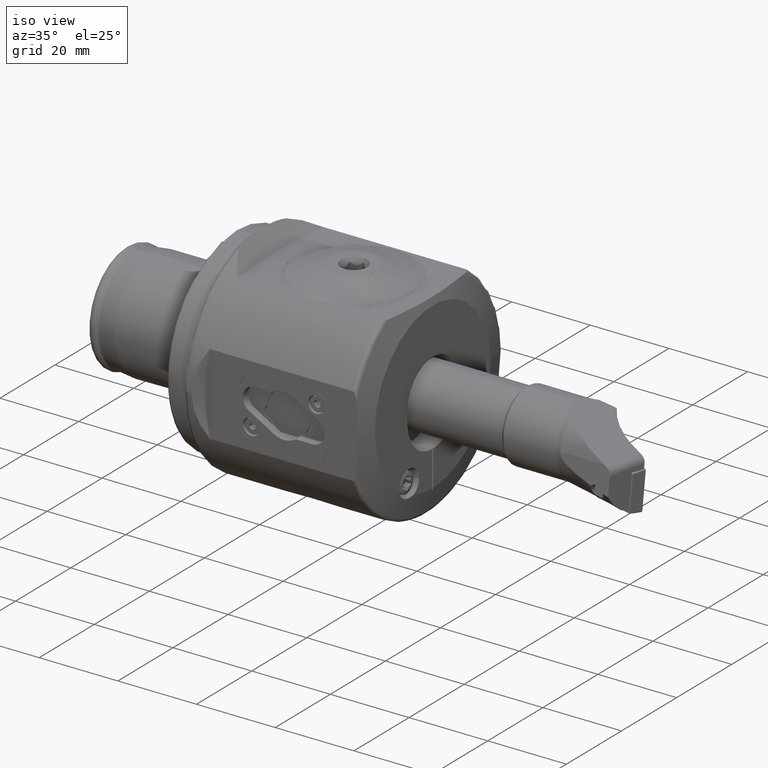
[diagram: clean part render]
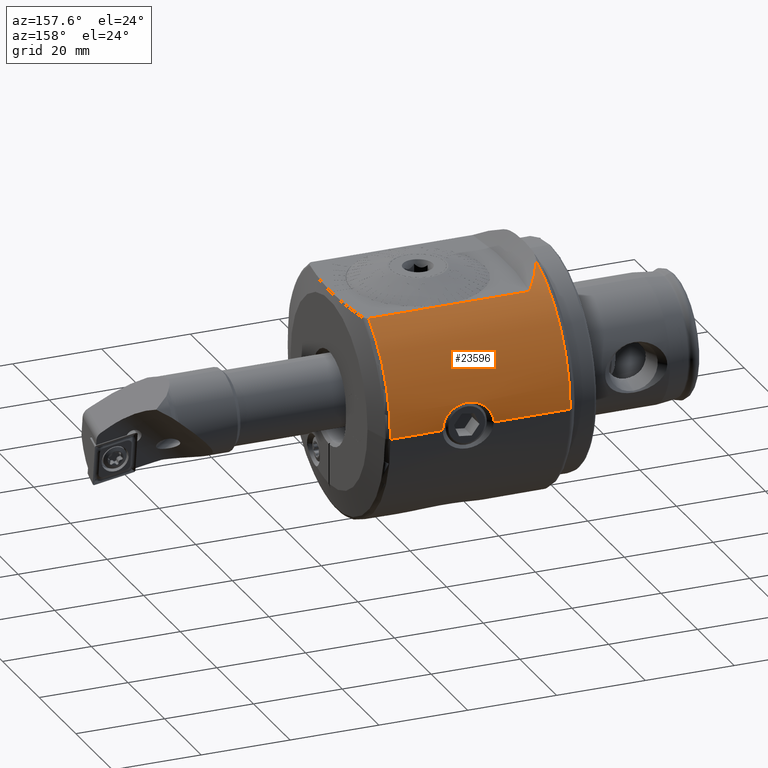
[diagram: tour spotlight — one face highlighted and labeled with its STEP entity id]
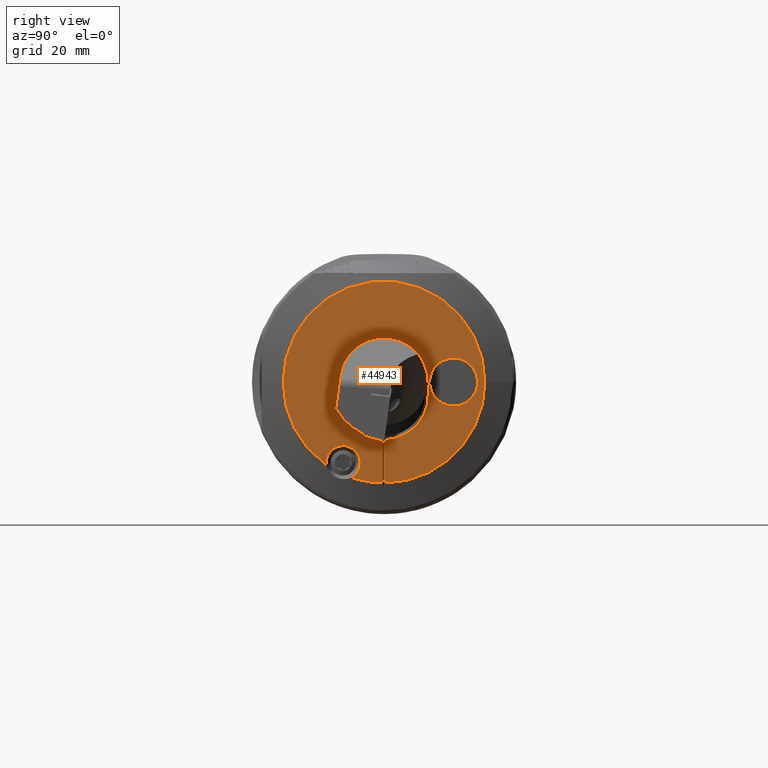
[diagram: tour spotlight — one face highlighted and labeled with its STEP entity id]
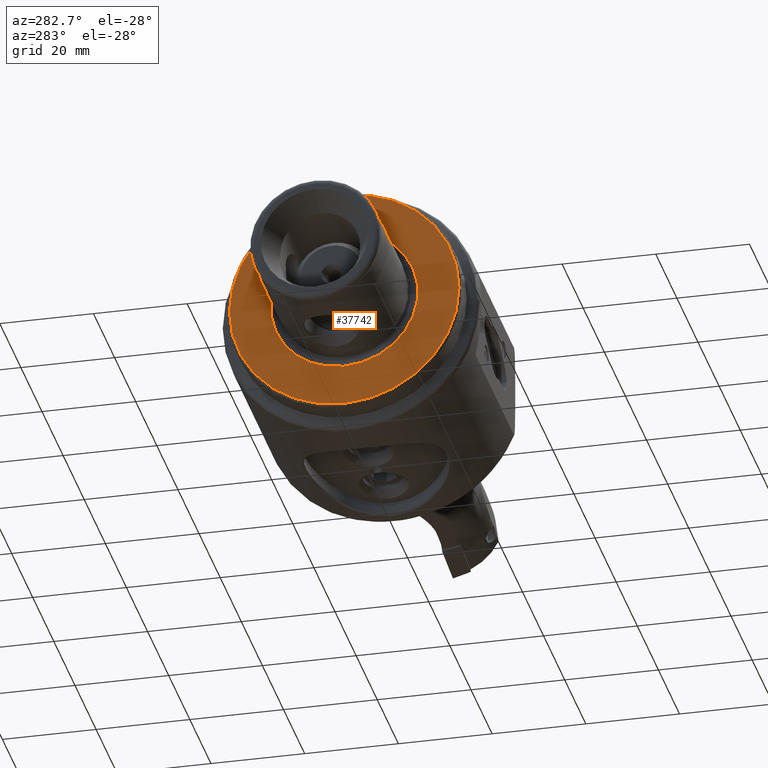
[diagram: tour spotlight — one face highlighted and labeled with its STEP entity id]
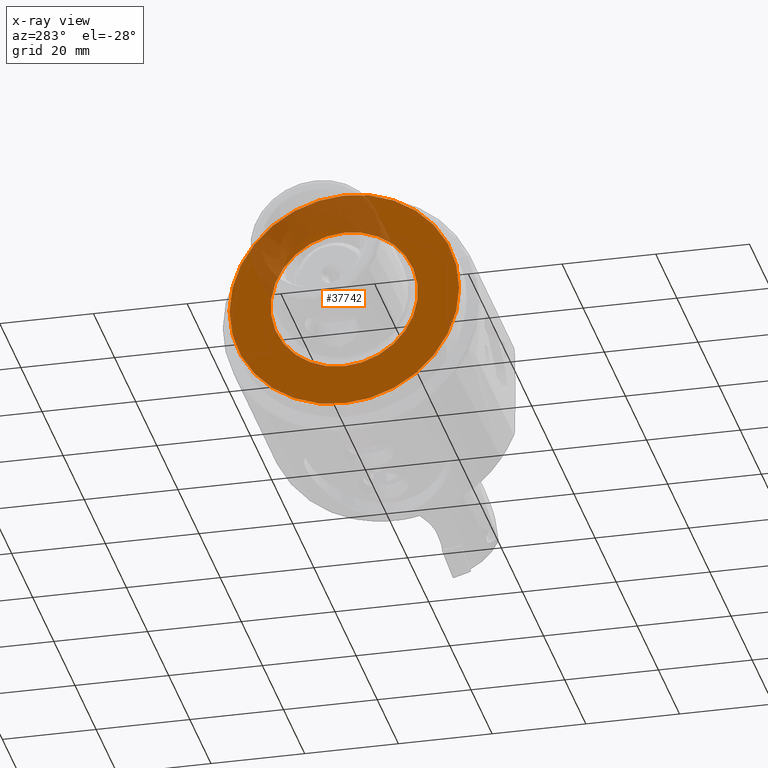
[diagram: x-ray of the same camera — body ghosted, this tour face saturated]
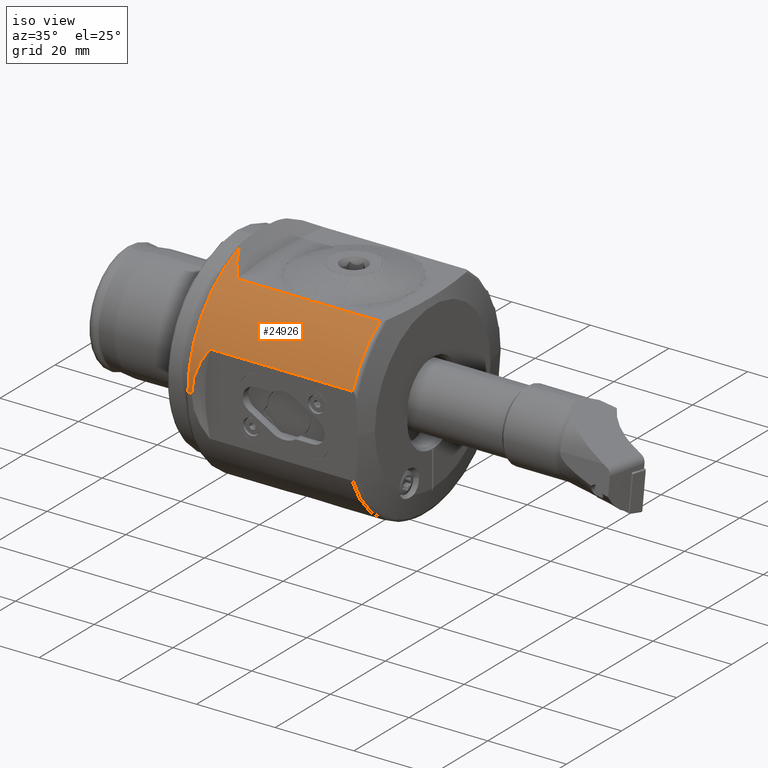
[diagram: tour spotlight — one face highlighted and labeled with its STEP entity id]
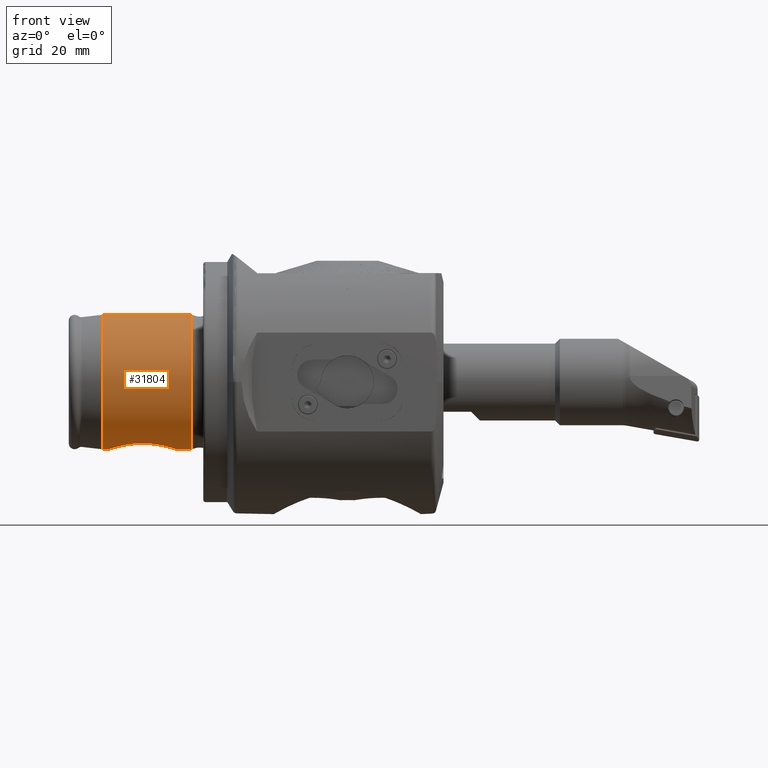
[diagram: tour spotlight — one face highlighted and labeled with its STEP entity id]
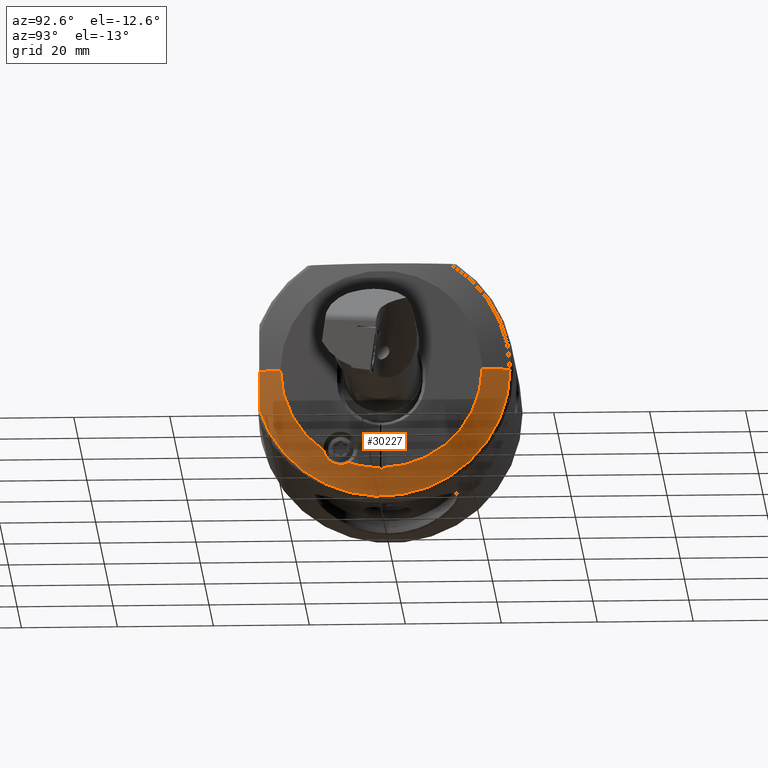
[diagram: tour spotlight — one face highlighted and labeled with its STEP entity id]
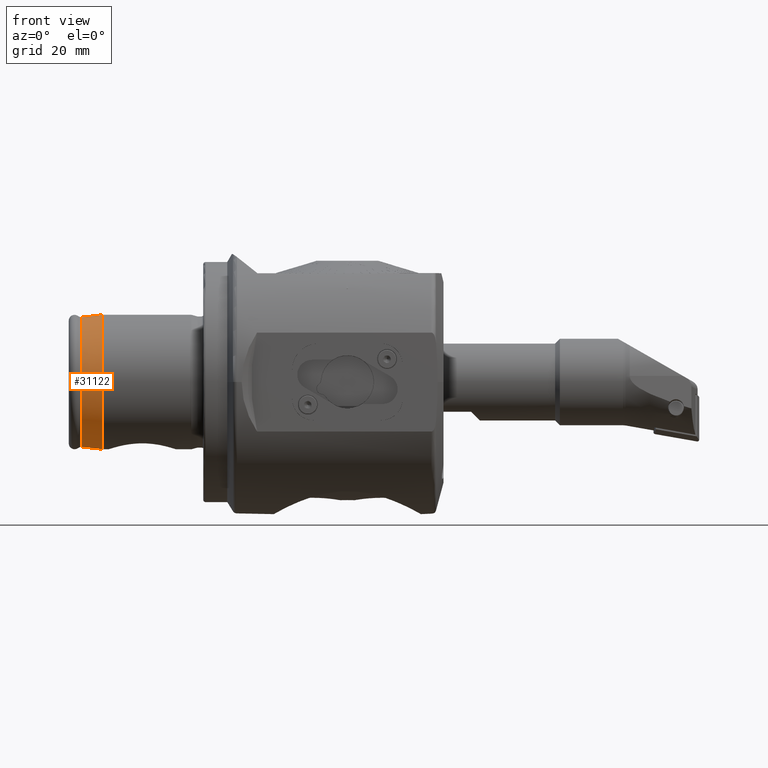
[diagram: tour spotlight — one face highlighted and labeled with its STEP entity id]
A machine part: a face-by-face anatomy tour. The part has 1146 B-rep faces; the first image is the clean iso view, then the 7 largest visible faces are spotlighted one at a time (largest first), each with its STEP entity span.

Face 1 — auxiliary view, entity #23596. In plain terms, the highlighted cylindrical surface (partial cylindrical patch) has radius 27.5 mm, axis along (1, 0, 0).
Definition (entity closure, byte-faithful):
#422 = CARTESIAN_POINT ( 'NONE',  ( 34.48664013262580900, 27.30367401681316900, 3.292619290459262200 ) ) ;
#1535 = CARTESIAN_POINT ( 'NONE',  ( 11.28888806550208700, 15.59575262691737100, 22.64999999999999900 ) ) ;
#2020 = VERTEX_POINT ( 'NONE', #29038 ) ;
#2223 = CARTESIAN_POINT ( 'NONE',  ( 28.56536123901419800, 27.02509249853382700, 5.089046931711127500 ) ) ;
#2275 = CARTESIAN_POINT ( 'NONE',  ( 7.295099628565216300, 9.504728240427333200, 25.81392808276809700 ) ) ;
#2359 = B_SPLINE_CURVE_WITH_KNOTS ( 'NONE', 3,
 ( #44262, #40722, #23012, #2223, #26597, #5702, #30252, #9227, #33774, #12677, #37290, #16111, #40882, #19578, #44415, #23168, #2377, #26743, #5847, #30408 ),
 .UNSPECIFIED., .F., .F.,
 ( 4, 2, 2, 2, 2, 2, 2, 2, 2, 4 ),
 ( 0.02150045790272727900, 0.02258147575346928000, 0.02366249360421127800, 0.02474351145495327900, 0.02582452930569528000, 0.02690554715643728200, 0.02798656500717928300, 0.02852707393255028000, 0.02906758285792128100, 0.03014860070866328200 ),
 .UNSPECIFIED. ) ;
#2377 = CARTESIAN_POINT ( 'NONE',  ( 24.41271416208396500, 27.47221337639535200, 1.248226674287408900 ) ) ;
#3843 = CARTESIAN_POINT ( 'NONE',  ( 33.69561253349307600, 27.20450514745681800, 4.027560752127720400 ) ) ;
#3856 = CARTESIAN_POINT ( 'NONE',  ( 30.00000000000000000, 26.99515431067581500, 5.245154310675809000 ) ) ;
#4425 = DIRECTION ( 'NONE',  ( 1.000000000000000000, 1.325327650935781300E-016, -0.0000000000000000000 ) ) ;
#4443 = CARTESIAN_POINT ( 'NONE',  ( 43.81155581890911300, 27.50000000000000400, 0.0000000000000000000 ) ) ;
#4741 = CARTESIAN_POINT ( 'NONE',  ( 47.49100326121872900, 15.59575262691738300, 22.64999999999999500 ) ) ;
#5102 = CARTESIAN_POINT ( 'NONE',  ( 43.81155581890912000, 15.59575262691737600, 22.64999999999999500 ) ) ;
#5702 = CARTESIAN_POINT ( 'NONE',  ( 27.54439511524466500, 27.08666143917900000, 4.751660128255320400 ) ) ;
#5847 = CARTESIAN_POINT ( 'NONE',  ( 24.25000000000000000, 27.50000000000000000, 0.3638165595453415300 ) ) ;
#7098 = CARTESIAN_POINT ( 'NONE',  ( 35.75000000000000000, 27.50000000000000700, -3.984733647497635900E-024 ) ) ;
#7376 = CARTESIAN_POINT ( 'NONE',  ( 32.77843715553198200, 27.11295521919760200, 4.601290271994437300 ) ) ;
#7757 = B_SPLINE_CURVE_WITH_KNOTS ( 'NONE', 3,
 ( #12584, #33677, #40776, #19484, #44323, #23074, #2275, #26648 ),
 .UNSPECIFIED., .F., .F.,
 ( 4, 2, 2, 4 ),
 ( 0.001027494643876979000, 0.005357538888533139700, 0.007522561010861220400, 0.009687583133189302900 ),
 .UNSPECIFIED. ) ;
#8634 = DIRECTION ( 'NONE',  ( -1.000000000000000000, -1.325327650935781300E-016, 0.0000000000000000000 ) ) ;
#9227 = CARTESIAN_POINT ( 'NONE',  ( 26.59332632410457700, 27.17269768992758100, 4.234175230876083200 ) ) ;
#10841 = CARTESIAN_POINT ( 'NONE',  ( 31.77928174427145100, 27.04243831230046500, 4.997194015613191100 ) ) ;
#12584 = CARTESIAN_POINT ( 'NONE',  ( 11.28888806550208700, 15.59575262691737100, 22.64999999999999900 ) ) ;
#12677 = CARTESIAN_POINT ( 'NONE',  ( 25.76245732680022700, 27.27019197263239300, 3.555714182692121000 ) ) ;
#12743 = CARTESIAN_POINT ( 'NONE',  ( 7.020725942163703200, 27.50000000000000000, 0.0000000000000000000 ) ) ;
#13354 = ORIENTED_EDGE ( 'NONE', *, *, #34006, .F. ) ;
#13596 = AXIS2_PLACEMENT_3D ( 'NONE', #16259, #41014, #19739 ) ;
#13915 = B_SPLINE_CURVE_WITH_KNOTS ( 'NONE', 3,
 ( #42250, #35114, #14156, #38826, #17605, #42398, #21131, #422, #24700, #3843, #28313, #7376, #31944, #10841, #35415, #14292, #38969, #17753 ),
 .UNSPECIFIED., .F., .F.,
 ( 4, 2, 2, 2, 2, 2, 2, 2, 4 ),
 ( 0.01286604629944311200, 0.01394534774985363400, 0.01502464920026415700, 0.01610395065067468000, 0.01718325210108520200, 0.01826255355149572500, 0.01934185500190624400, 0.02042115645231676700, 0.02150045790272727900 ),
 .UNSPECIFIED. ) ;
#14108 = CIRCLE ( 'NONE', #13596, 27.50000000000000400 ) ;
#14156 = CARTESIAN_POINT ( 'NONE',  ( 35.70806954720822500, 27.49268124569142200, 0.7246619657989417100 ) ) ;
#14292 = CARTESIAN_POINT ( 'NONE',  ( 30.71625930896219700, 27.00115032311225600, 5.214581495486021900 ) ) ;
#14439 = EDGE_CURVE ( 'NONE', #22565, #2020, #38536, .T. ) ;
#16111 = CARTESIAN_POINT ( 'NONE',  ( 25.07441322858073800, 27.36642906320268100, 2.722146513799439800 ) ) ;
#16259 = CARTESIAN_POINT ( 'NONE',  ( 47.49100326121872900, 5.691817771476207900E-015, 0.0000000000000000000 ) ) ;
#17605 = CARTESIAN_POINT ( 'NONE',  ( 35.42652125879051500, 27.44519399573104200, 1.765933524648135400 ) ) ;
#17753 = CARTESIAN_POINT ( 'NONE',  ( 30.00000000000000000, 26.99515431067581500, 5.245154310675809000 ) ) ;
#18120 = AXIS2_PLACEMENT_3D ( 'NONE', #28255, #28089, #27777 ) ;
#18228 = CARTESIAN_POINT ( 'NONE',  ( 43.81155581890911300, 27.50000000000000400, 0.0000000000000000000 ) ) ;
#18275 = DIRECTION ( 'NONE',  ( 1.000000000000000000, 1.325327650935781300E-016, -0.0000000000000000000 ) ) ;
#18405 = LINE ( 'NONE', #18228, #18503 ) ;
#18503 = VECTOR ( 'NONE', #18275, 1000.000000000000000 ) ;
#19140 = EDGE_CURVE ( 'NONE', #22565, #35268, #22450, .T. ) ;
#19264 = ORIENTED_EDGE ( 'NONE', *, *, #19944, .F. ) ;
#19484 = CARTESIAN_POINT ( 'NONE',  ( 8.584020132477324000, 11.90686735705295800, 24.79656096075710900 ) ) ;
#19524 = CYLINDRICAL_SURFACE ( 'NONE', #28456, 27.49999999999999600 ) ;
#19578 = CARTESIAN_POINT ( 'NONE',  ( 24.65252016586170600, 27.43260441361209700, 1.931004676444233200 ) ) ;
#19739 = DIRECTION ( 'NONE',  ( -2.523234146875355500E-016, 1.000000000000000000, 0.0000000000000000000 ) ) ;
#19944 = EDGE_CURVE ( 'NONE', #43612, #26388, #18405, .T. ) ;
#21131 = CARTESIAN_POINT ( 'NONE',  ( 34.92477697076184700, 27.36630298723363500, 2.723493605505730400 ) ) ;
#22306 = VECTOR ( 'NONE', #4425, 1000.000000000000000 ) ;
#22450 = LINE ( 'NONE', #4443, #22306 ) ;
#22565 = VERTEX_POINT ( 'NONE', #12743 ) ;
#23012 = CARTESIAN_POINT ( 'NONE',  ( 29.27598152650771000, 27.00132924440389500, 5.213659200865253100 ) ) ;
#23074 = CARTESIAN_POINT ( 'NONE',  ( 7.597060774627776100, 10.12666056888096500, 25.57589841805371100 ) ) ;
#23168 = CARTESIAN_POINT ( 'NONE',  ( 24.46274438739430600, 27.46379988734642600, 1.420873516689211000 ) ) ;
#23596 = ADVANCED_FACE ( 'NONE', ( #45466 ), #19524, .T. ) ;
#24312 = ORIENTED_EDGE ( 'NONE', *, *, #19140, .F. ) ;
#24314 = ORIENTED_EDGE ( 'NONE', *, *, #34346, .T. ) ;
#24573 = VERTEX_POINT ( 'NONE', #3856 ) ;
#24700 = CARTESIAN_POINT ( 'NONE',  ( 34.23586619000884900, 27.26997616807640100, 3.557350941730273300 ) ) ;
#26388 = VERTEX_POINT ( 'NONE', #30731 ) ;
#26597 = CARTESIAN_POINT ( 'NONE',  ( 28.21903903512780000, 27.04252547308170700, 4.996730724472313600 ) ) ;
#26648 = CARTESIAN_POINT ( 'NONE',  ( 7.020725942163715600, 8.870654134184974300, 26.03001143356773600 ) ) ;
#26743 = CARTESIAN_POINT ( 'NONE',  ( 24.29187331066932400, 27.49269152222884600, 0.7240327188444600800 ) ) ;
#27777 = DIRECTION ( 'NONE',  ( 1.261617073437678000E-016, -1.000000000000000000, -8.881784197001252300E-016 ) ) ;
#28089 = DIRECTION ( 'NONE',  ( 1.000000000000000000, 1.325327650935781300E-016, -0.0000000000000000000 ) ) ;
#28255 = CARTESIAN_POINT ( 'NONE',  ( 7.020725942163706700, 3.281800142779248400E-016, 0.0000000000000000000 ) ) ;
#28313 = CARTESIAN_POINT ( 'NONE',  ( 33.40405770456293800, 27.17239665146073700, 4.236162544219801900 ) ) ;
#28456 = AXIS2_PLACEMENT_3D ( 'NONE', #32364, #31967, #31959 ) ;
#29038 = CARTESIAN_POINT ( 'NONE',  ( 7.020725942163715600, 8.870654134184974300, 26.03001143356773600 ) ) ;
#30252 = CARTESIAN_POINT ( 'NONE',  ( 27.21305268871703800, 27.11371222982860400, 4.596775908395256800 ) ) ;
#30408 = CARTESIAN_POINT ( 'NONE',  ( 24.25000000000000400, 27.50000000000000000, 8.111135985064654500E-020 ) ) ;
#30731 = CARTESIAN_POINT ( 'NONE',  ( 47.49100326121872200, 27.50000000000001100, 0.0000000000000000000 ) ) ;
#31944 = CARTESIAN_POINT ( 'NONE',  ( 32.45289704261468000, 27.08646174069834000, 4.752789525525143300 ) ) ;
#31959 = DIRECTION ( 'NONE',  ( -2.523234146875356000E-016, 1.000000000000000000, 0.0000000000000000000 ) ) ;
#31967 = DIRECTION ( 'NONE',  ( 1.000000000000000000, 1.325327650935781300E-016, -0.0000000000000000000 ) ) ;
#32364 = CARTESIAN_POINT ( 'NONE',  ( 43.81155581890912000, 5.204170427930421300E-015, 0.0000000000000000000 ) ) ;
#33167 = EDGE_CURVE ( 'NONE', #35469, #2020, #7757, .T. ) ;
#33677 = CARTESIAN_POINT ( 'NONE',  ( 10.44714176793385200, 14.62201434866149600, 23.32047158106133400 ) ) ;
#33757 = EDGE_CURVE ( 'NONE', #34638, #35469, #36141, .T. ) ;
#33774 = CARTESIAN_POINT ( 'NONE',  ( 26.30291935198258100, 27.20467049651792000, 4.026459579967228900 ) ) ;
#34006 = EDGE_CURVE ( 'NONE', #26388, #34638, #14108, .T. ) ;
#34345 = ORIENTED_EDGE ( 'NONE', *, *, #14439, .T. ) ;
#34346 = EDGE_CURVE ( 'NONE', #43612, #24573, #13915, .T. ) ;
#34500 = EDGE_LOOP ( 'NONE', ( #24312, #34345, #40422, #45402, #13354, #19264, #24314, #38147 ) ) ;
#34638 = VERTEX_POINT ( 'NONE', #4741 ) ;
#35064 = VECTOR ( 'NONE', #8634, 1000.000000000000000 ) ;
#35114 = CARTESIAN_POINT ( 'NONE',  ( 35.75000000000000000, 27.49999999999999600, 0.3594842936955667300 ) ) ;
#35268 = VERTEX_POINT ( 'NONE', #39247 ) ;
#35415 = CARTESIAN_POINT ( 'NONE',  ( 31.42790047182989000, 27.02478824701741500, 5.090658027037303400 ) ) ;
#35469 = VERTEX_POINT ( 'NONE', #1535 ) ;
#35988 = EDGE_CURVE ( 'NONE', #24573, #35268, #2359, .T. ) ;
#36141 = LINE ( 'NONE', #5102, #35064 ) ;
#37290 = CARTESIAN_POINT ( 'NONE',  ( 25.51093586203130000, 27.30401026972269900, 3.289763594055324300 ) ) ;
#38147 = ORIENTED_EDGE ( 'NONE', *, *, #35988, .T. ) ;
#38536 = CIRCLE ( 'NONE', #18120, 27.50000000000000000 ) ;
#38826 = CARTESIAN_POINT ( 'NONE',  ( 35.54654447358040400, 27.46530978626452300, 1.424575510947407400 ) ) ;
#38969 = CARTESIAN_POINT ( 'NONE',  ( 30.35888688200786900, 26.99515431067582600, 5.245154310675811600 ) ) ;
#39247 = CARTESIAN_POINT ( 'NONE',  ( 24.25000000000000400, 27.50000000000000000, 8.111135985064654500E-020 ) ) ;
#40422 = ORIENTED_EDGE ( 'NONE', *, *, #33167, .F. ) ;
#40722 = CARTESIAN_POINT ( 'NONE',  ( 29.64054238442829700, 26.99515431067581500, 5.245154310675809000 ) ) ;
#40776 = CARTESIAN_POINT ( 'NONE',  ( 9.661122756092464000, 13.58308329290484400, 23.94413396249684900 ) ) ;
#40882 = CARTESIAN_POINT ( 'NONE',  ( 24.88626313331497300, 27.39538140868671000, 2.418539511626479800 ) ) ;
#41014 = DIRECTION ( 'NONE',  ( 1.000000000000000000, 1.325327650935781300E-016, -0.0000000000000000000 ) ) ;
#42250 = CARTESIAN_POINT ( 'NONE',  ( 35.75000000000000000, 27.50000000000000700, -3.984733647497635900E-024 ) ) ;
#42398 = CARTESIAN_POINT ( 'NONE',  ( 35.11368899108696000, 27.39537136746296800, 2.418847311340095900 ) ) ;
#43612 = VERTEX_POINT ( 'NONE', #7098 ) ;
#44262 = CARTESIAN_POINT ( 'NONE',  ( 30.00000000000000000, 26.99515431067581500, 5.245154310675809000 ) ) ;
#44323 = CARTESIAN_POINT ( 'NONE',  ( 8.242067902770447300, 11.32838321158795800, 25.06678216244244300 ) ) ;
#44415 = CARTESIAN_POINT ( 'NONE',  ( 24.58244062775297300, 27.44402702691587900, 1.761977964830684800 ) ) ;
#45402 = ORIENTED_EDGE ( 'NONE', *, *, #33757, .F. ) ;
#45466 = FACE_OUTER_BOUND ( 'NONE', #34500, .T. ) ;

Face 2 — right view, entity #44943. In plain terms, the highlighted planar face has unit normal (1, 0, 0).
Definition (entity closure, byte-faithful):
#772 = PLANE ( 'NONE',  #4908 ) ;
#892 = DIRECTION ( 'NONE',  ( 0.0000000000000000000, 1.000000000000000000, 0.0000000000000000000 ) ) ;
#1034 = ORIENTED_EDGE ( 'NONE', *, *, #34708, .T. ) ;
#1231 = CIRCLE ( 'NONE', #23126, 9.200000000000025900 ) ;
#1855 = CARTESIAN_POINT ( 'NONE',  ( 50.00000000000000000, 0.2500000000000000000, -20.99851185203370800 ) ) ;
#1886 = CARTESIAN_POINT ( 'NONE',  ( 50.00000000000000000, -12.04337567297404200, -16.80000000000000100 ) ) ;
#2576 = CARTESIAN_POINT ( 'NONE',  ( 50.00000000000000000, -4.956624327025942900, -16.80000000000000100 ) ) ;
#2727 = EDGE_CURVE ( 'NONE', #22667, #36746, #37999, .T. ) ;
#2969 = VECTOR ( 'NONE', #41688, 1000.000000000000000 ) ;
#3008 = AXIS2_PLACEMENT_3D ( 'NONE', #39695, #39690, #39629 ) ;
#3243 = VECTOR ( 'NONE', #29566, 1000.000000000000000 ) ;
#3437 = LINE ( 'NONE', #42705, #2969 ) ;
#3609 = CIRCLE ( 'NONE', #20999, 9.200000000000029500 ) ;
#3699 = VERTEX_POINT ( 'NONE', #19330 ) ;
#4316 = LINE ( 'NONE', #25918, #3243 ) ;
#4785 = DIRECTION ( 'NONE',  ( 1.000000000000000000, 1.325327650935781300E-016, -0.0000000000000000000 ) ) ;
#4890 = DIRECTION ( 'NONE',  ( -1.000000000000000000, -1.325327650935781300E-016, 0.0000000000000000000 ) ) ;
#4908 = AXIS2_PLACEMENT_3D ( 'NONE', #11058, #32308, #11219 ) ;
#5154 = CARTESIAN_POINT ( 'NONE',  ( 50.00000000000000000, 0.2500000000000000000, -27.50000000000000400 ) ) ;
#5454 = AXIS2_PLACEMENT_3D ( 'NONE', #42881, #21630, #892 ) ;
#6251 = CIRCLE ( 'NONE', #35224, 21.00000000000000400 ) ;
#7359 = CARTESIAN_POINT ( 'NONE',  ( 50.00000000000000000, 9.200000000000033000, -2.800000000000000300 ) ) ;
#8099 = VERTEX_POINT ( 'NONE', #37662 ) ;
#8466 = CARTESIAN_POINT ( 'NONE',  ( 50.00000000000000000, 14.50000000000000700, 0.0000000000000000000 ) ) ;
#8840 = CARTESIAN_POINT ( 'NONE',  ( 50.00000000000000000, 6.024342046877659400E-015, 0.0000000000000000000 ) ) ;
#9353 = CIRCLE ( 'NONE', #24061, 3.543375672974050400 ) ;
#9404 = DIRECTION ( 'NONE',  ( -1.000000000000000000, -1.325327650935781300E-016, 0.0000000000000000000 ) ) ;
#9457 = DIRECTION ( 'NONE',  ( -1.000000000000000000, -1.325327650935781300E-016, 0.0000000000000000000 ) ) ;
#10142 = VERTEX_POINT ( 'NONE', #16265 ) ;
#10399 = DIRECTION ( 'NONE',  ( -0.0000000000000000000, -0.0000000000000000000, 1.000000000000000000 ) ) ;
#11049 = ORIENTED_EDGE ( 'NONE', *, *, #11331, .T. ) ;
#11058 = CARTESIAN_POINT ( 'NONE',  ( 50.00000000000000000, 6.938893903907228400E-015, 0.0000000000000000000 ) ) ;
#11219 = DIRECTION ( 'NONE',  ( -1.325327650935781300E-016, 1.000000000000000000, 0.0000000000000000000 ) ) ;
#11331 = EDGE_CURVE ( 'NONE', #8099, #29473, #3609, .T. ) ;
#11356 = CIRCLE ( 'NONE', #30721, 21.00000000000000400 ) ;
#11387 = EDGE_CURVE ( 'NONE', #29473, #27806, #3437, .T. ) ;
#11893 = DIRECTION ( 'NONE',  ( 0.0000000000000000000, 0.0000000000000000000, -1.000000000000000000 ) ) ;
#11971 = EDGE_CURVE ( 'NONE', #27806, #24320, #1231, .T. ) ;
#12302 = DIRECTION ( 'NONE',  ( 0.0000000000000000000, 1.000000000000000000, 0.0000000000000000000 ) ) ;
#12469 = EDGE_CURVE ( 'NONE', #24320, #22667, #45257, .T. ) ;
#12516 = CARTESIAN_POINT ( 'NONE',  ( 50.00000000000000000, -0.2500000000000000000, -20.99851185203370800 ) ) ;
#12641 = CARTESIAN_POINT ( 'NONE',  ( 50.00000000000000000, 9.200000000000033000, 0.0000000000000000000 ) ) ;
#12679 = AXIS2_PLACEMENT_3D ( 'NONE', #8840, #33386, #12302 ) ;
#13320 = EDGE_CURVE ( 'NONE', #21373, #36746, #42544, .T. ) ;
#13633 = CARTESIAN_POINT ( 'NONE',  ( 50.00000000000000000, -12.01828346241894100, -17.22094255890042200 ) ) ;
#15153 = CIRCLE ( 'NONE', #12679, 21.00000000000000400 ) ;
#16265 = CARTESIAN_POINT ( 'NONE',  ( 50.00000000000000000, 21.00000000000001100, 2.924384243732123100E-015 ) ) ;
#16515 = EDGE_LOOP ( 'NONE', ( #33196, #33353 ) ) ;
#17212 = DIRECTION ( 'NONE',  ( 0.0000000000000000000, 0.0000000000000000000, -1.000000000000000000 ) ) ;
#17338 = AXIS2_PLACEMENT_3D ( 'NONE', #25757, #4890, #29421 ) ;
#17833 = CARTESIAN_POINT ( 'NONE',  ( 50.00000000000000000, -9.200000000000018800, -8.673617379884032500E-016 ) ) ;
#18274 = FACE_BOUND ( 'NONE', #16515, .T. ) ;
#18647 = CARTESIAN_POINT ( 'NONE',  ( 50.00000000000000000, 9.200000000000033000, -2.800000000000000300 ) ) ;
#19330 = CARTESIAN_POINT ( 'NONE',  ( 50.00000000000000000, -20.99999999999999600, 0.0000000000000000000 ) ) ;
#19509 = EDGE_CURVE ( 'NONE', #41039, #39815, #20862, .T. ) ;
#20431 = DIRECTION ( 'NONE',  ( 0.0000000000000000000, 1.000000000000000000, 0.0000000000000000000 ) ) ;
#20488 = DIRECTION ( 'NONE',  ( 1.000000000000000000, 1.325327650935781300E-016, -0.0000000000000000000 ) ) ;
#20522 = CARTESIAN_POINT ( 'NONE',  ( 50.00000000000000000, 6.024342046877659400E-015, 0.0000000000000000000 ) ) ;
#20862 = CIRCLE ( 'NONE', #25899, 4.999999999999999100 ) ;
#20999 = AXIS2_PLACEMENT_3D ( 'NONE', #43056, #43000, #42946 ) ;
#21373 = VERTEX_POINT ( 'NONE', #1855 ) ;
#21630 = DIRECTION ( 'NONE',  ( 1.000000000000000000, 1.325327650935781300E-016, -0.0000000000000000000 ) ) ;
#22076 = ORIENTED_EDGE ( 'NONE', *, *, #29567, .T. ) ;
#22342 = EDGE_CURVE ( 'NONE', #10142, #3699, #6251, .T. ) ;
#22667 = VERTEX_POINT ( 'NONE', #7359 ) ;
#22790 = CIRCLE ( 'NONE', #17338, 3.543375672974050400 ) ;
#23126 = AXIS2_PLACEMENT_3D ( 'NONE', #29516, #29475, #29426 ) ;
#23768 = ORIENTED_EDGE ( 'NONE', *, *, #22342, .T. ) ;
#23886 = CARTESIAN_POINT ( 'NONE',  ( 50.00000000000000000, 14.50000000000000700, -4.999999999999999100 ) ) ;
#24061 = AXIS2_PLACEMENT_3D ( 'NONE', #30502, #9457, #33996 ) ;
#24320 = VERTEX_POINT ( 'NONE', #12641 ) ;
#24588 = CARTESIAN_POINT ( 'NONE',  ( 50.00000000000000000, -9.200000000000022400, -2.800000000000002000 ) ) ;
#24930 = ORIENTED_EDGE ( 'NONE', *, *, #31719, .T. ) ;
#25115 = EDGE_CURVE ( 'NONE', #39815, #41039, #31317, .T. ) ;
#25335 = ORIENTED_EDGE ( 'NONE', *, *, #27696, .T. ) ;
#25588 = CARTESIAN_POINT ( 'NONE',  ( 50.00000000000000000, 14.50000000000000700, 4.999999999999999100 ) ) ;
#25650 = CARTESIAN_POINT ( 'NONE',  ( 50.00000000000000000, 6.024342046877659400E-015, 0.0000000000000000000 ) ) ;
#25757 = CARTESIAN_POINT ( 'NONE',  ( 50.00000000000000000, -8.499999999999991100, -16.80000000000000100 ) ) ;
#25899 = AXIS2_PLACEMENT_3D ( 'NONE', #27877, #30070, #27735 ) ;
#25918 = CARTESIAN_POINT ( 'NONE',  ( 50.00000000000000000, -0.2500000000000000000, -27.50000000000000400 ) ) ;
#26399 = ORIENTED_EDGE ( 'NONE', *, *, #34635, .T. ) ;
#26787 = ORIENTED_EDGE ( 'NONE', *, *, #29218, .T. ) ;
#27131 = ORIENTED_EDGE ( 'NONE', *, *, #31366, .T. ) ;
#27696 = EDGE_CURVE ( 'NONE', #44780, #32312, #9353, .T. ) ;
#27735 = DIRECTION ( 'NONE',  ( 0.0000000000000000000, 0.0000000000000000000, -1.000000000000000000 ) ) ;
#27806 = VERTEX_POINT ( 'NONE', #17833 ) ;
#27877 = CARTESIAN_POINT ( 'NONE',  ( 50.00000000000000000, 14.50000000000000700, 0.0000000000000000000 ) ) ;
#28824 = AXIS2_PLACEMENT_3D ( 'NONE', #8466, #32997, #11893 ) ;
#28888 = FACE_OUTER_BOUND ( 'NONE', #42166, .T. ) ;
#29218 = EDGE_CURVE ( 'NONE', #33345, #35080, #39415, .T. ) ;
#29312 = DIRECTION ( 'NONE',  ( 0.0000000000000000000, 1.000000000000000000, 0.0000000000000000000 ) ) ;
#29421 = DIRECTION ( 'NONE',  ( 0.0000000000000000000, 1.000000000000000000, 0.0000000000000000000 ) ) ;
#29426 = DIRECTION ( 'NONE',  ( 0.0000000000000000000, 1.000000000000000000, 0.0000000000000000000 ) ) ;
#29473 = VERTEX_POINT ( 'NONE', #24588 ) ;
#29475 = DIRECTION ( 'NONE',  ( -1.000000000000000000, -1.325327650935781300E-016, 0.0000000000000000000 ) ) ;
#29516 = CARTESIAN_POINT ( 'NONE',  ( 50.00000000000000000, 6.626638254678906300E-015, 0.0000000000000000000 ) ) ;
#29566 = DIRECTION ( 'NONE',  ( -0.0000000000000000000, -0.0000000000000000000, 1.000000000000000000 ) ) ;
#29567 = EDGE_CURVE ( 'NONE', #21373, #10142, #36169, .T. ) ;
#29820 = VERTEX_POINT ( 'NONE', #12516 ) ;
#30045 = ORIENTED_EDGE ( 'NONE', *, *, #11387, .T. ) ;
#30070 = DIRECTION ( 'NONE',  ( 1.000000000000000000, -0.0000000000000000000, -0.0000000000000000000 ) ) ;
#30445 = CARTESIAN_POINT ( 'NONE',  ( 50.00000000000000000, -8.499999999999991100, -16.80000000000000100 ) ) ;
#30502 = CARTESIAN_POINT ( 'NONE',  ( 50.00000000000000000, -8.499999999999991100, -16.80000000000000100 ) ) ;
#30503 = ORIENTED_EDGE ( 'NONE', *, *, #11971, .T. ) ;
#30721 = AXIS2_PLACEMENT_3D ( 'NONE', #25650, #4785, #29312 ) ;
#31317 = CIRCLE ( 'NONE', #28824, 4.999999999999999100 ) ;
#31366 = EDGE_CURVE ( 'NONE', #35080, #29820, #15153, .T. ) ;
#31719 = EDGE_CURVE ( 'NONE', #3699, #44780, #11356, .T. ) ;
#31724 = ORIENTED_EDGE ( 'NONE', *, *, #12469, .T. ) ;
#31887 = ORIENTED_EDGE ( 'NONE', *, *, #2727, .T. ) ;
#32278 = ORIENTED_EDGE ( 'NONE', *, *, #13320, .F. ) ;
#32308 = DIRECTION ( 'NONE',  ( 1.000000000000000000, 1.325327650935781300E-016, -0.0000000000000000000 ) ) ;
#32312 = VERTEX_POINT ( 'NONE', #1886 ) ;
#32997 = DIRECTION ( 'NONE',  ( 1.000000000000000000, -0.0000000000000000000, -0.0000000000000000000 ) ) ;
#33196 = ORIENTED_EDGE ( 'NONE', *, *, #25115, .F. ) ;
#33345 = VERTEX_POINT ( 'NONE', #2576 ) ;
#33353 = ORIENTED_EDGE ( 'NONE', *, *, #19509, .F. ) ;
#33386 = DIRECTION ( 'NONE',  ( 1.000000000000000000, 1.325327650935781300E-016, -0.0000000000000000000 ) ) ;
#33947 = DIRECTION ( 'NONE',  ( 0.0000000000000000000, 1.000000000000000000, 0.0000000000000000000 ) ) ;
#33996 = DIRECTION ( 'NONE',  ( 0.0000000000000000000, 1.000000000000000000, 0.0000000000000000000 ) ) ;
#34635 = EDGE_CURVE ( 'NONE', #32312, #33345, #22790, .T. ) ;
#34708 = EDGE_CURVE ( 'NONE', #29820, #8099, #4316, .T. ) ;
#35080 = VERTEX_POINT ( 'NONE', #44500 ) ;
#35224 = AXIS2_PLACEMENT_3D ( 'NONE', #20522, #20488, #20431 ) ;
#36169 = CIRCLE ( 'NONE', #5454, 21.00000000000000400 ) ;
#36746 = VERTEX_POINT ( 'NONE', #43102 ) ;
#37662 = CARTESIAN_POINT ( 'NONE',  ( 50.00000000000000000, -0.2500000000000000000, -11.99660263358162700 ) ) ;
#37999 = CIRCLE ( 'NONE', #3008, 9.200000000000029500 ) ;
#39415 = CIRCLE ( 'NONE', #42557, 3.543375672974050400 ) ;
#39629 = DIRECTION ( 'NONE',  ( 0.0000000000000000000, 1.000000000000000000, 0.0000000000000000000 ) ) ;
#39690 = DIRECTION ( 'NONE',  ( -1.000000000000000000, -1.325327650935781300E-016, 0.0000000000000000000 ) ) ;
#39695 = CARTESIAN_POINT ( 'NONE',  ( 50.00000000000000000, 7.060319123673108000E-015, -2.800000000000000300 ) ) ;
#39815 = VERTEX_POINT ( 'NONE', #23886 ) ;
#41039 = VERTEX_POINT ( 'NONE', #25588 ) ;
#41688 = DIRECTION ( 'NONE',  ( 0.0000000000000000000, 0.0000000000000000000, 1.000000000000000000 ) ) ;
#42166 = EDGE_LOOP ( 'NONE', ( #22076, #23768, #24930, #25335, #26399, #26787, #27131, #1034, #11049, #30045, #30503, #31724, #31887, #32278 ) ) ;
#42416 = VECTOR ( 'NONE', #10399, 1000.000000000000000 ) ;
#42544 = LINE ( 'NONE', #5154, #42416 ) ;
#42557 = AXIS2_PLACEMENT_3D ( 'NONE', #30445, #9404, #33947 ) ;
#42705 = CARTESIAN_POINT ( 'NONE',  ( 50.00000000000000000, -9.200000000000022400, -8.673617379884035500E-016 ) ) ;
#42881 = CARTESIAN_POINT ( 'NONE',  ( 50.00000000000000000, 6.024342046877659400E-015, 0.0000000000000000000 ) ) ;
#42946 = DIRECTION ( 'NONE',  ( 0.0000000000000000000, 1.000000000000000000, 0.0000000000000000000 ) ) ;
#43000 = DIRECTION ( 'NONE',  ( -1.000000000000000000, -1.325327650935781300E-016, 0.0000000000000000000 ) ) ;
#43056 = CARTESIAN_POINT ( 'NONE',  ( 50.00000000000000000, 7.060319123673108000E-015, -2.800000000000000300 ) ) ;
#43102 = CARTESIAN_POINT ( 'NONE',  ( 50.00000000000000000, 0.2499999999999999400, -11.99660263358162900 ) ) ;
#44500 = CARTESIAN_POINT ( 'NONE',  ( 50.00000000000000000, -6.755005361360274700, -19.88391064574557300 ) ) ;
#44780 = VERTEX_POINT ( 'NONE', #13633 ) ;
#44943 = ADVANCED_FACE ( 'NONE', ( #28888, #18274 ), #772, .T. ) ;
#45257 = LINE ( 'NONE', #18647, #45306 ) ;
#45306 = VECTOR ( 'NONE', #17212, 1000.000000000000000 ) ;

Face 3 — auxiliary view, entity #37742. An x-ray twin of the same camera follows (body ghosted, this face saturated) — the face is partly hidden behind the body. In plain terms, the highlighted planar face has unit normal (1, 0, 0).
Definition (entity closure, byte-faithful):
#413 = ORIENTED_EDGE ( 'NONE', *, *, #29055, .T. ) ;
#3883 = DIRECTION ( 'NONE',  ( 0.0000000000000000000, 0.0000000000000000000, -1.000000000000000000 ) ) ;
#4219 = AXIS2_PLACEMENT_3D ( 'NONE', #9670, #9583, #9518 ) ;
#4676 = FACE_OUTER_BOUND ( 'NONE', #21280, .T. ) ;
#5433 = CIRCLE ( 'NONE', #31631, 24.50000000000000400 ) ;
#5770 = FACE_BOUND ( 'NONE', #20033, .T. ) ;
#6357 = CARTESIAN_POINT ( 'NONE',  ( 0.0000000000000000000, 3.031000827889699600E-015, -24.50000000000000400 ) ) ;
#7053 = CARTESIAN_POINT ( 'NONE',  ( 0.0000000000000000000, 0.0000000000000000000, 0.0000000000000000000 ) ) ;
#7948 = AXIS2_PLACEMENT_3D ( 'NONE', #38717, #24741, #3883 ) ;
#8336 = CARTESIAN_POINT ( 'NONE',  ( 0.0000000000000000000, 0.0000000000000000000, 24.50000000000000400 ) ) ;
#9518 = DIRECTION ( 'NONE',  ( 0.0000000000000000000, 0.0000000000000000000, 1.000000000000000000 ) ) ;
#9583 = DIRECTION ( 'NONE',  ( -1.000000000000000000, -0.0000000000000000000, -0.0000000000000000000 ) ) ;
#9670 = CARTESIAN_POINT ( 'NONE',  ( 0.0000000000000000000, 0.0000000000000000000, 0.0000000000000000000 ) ) ;
#10539 = DIRECTION ( 'NONE',  ( 0.0000000000000000000, 0.0000000000000000000, 1.000000000000000000 ) ) ;
#10628 = EDGE_CURVE ( 'NONE', #33694, #16879, #5433, .T. ) ;
#11367 = DIRECTION ( 'NONE',  ( -1.000000000000000000, -0.0000000000000000000, -0.0000000000000000000 ) ) ;
#14112 = EDGE_CURVE ( 'NONE', #14382, #16366, #39249, .T. ) ;
#14287 = CARTESIAN_POINT ( 'NONE',  ( 0.0000000000000000000, 0.0000000000000000000, 15.71503003164298700 ) ) ;
#14382 = VERTEX_POINT ( 'NONE', #29939 ) ;
#16366 = VERTEX_POINT ( 'NONE', #14287 ) ;
#16444 = AXIS2_PLACEMENT_3D ( 'NONE', #32475, #11367, #35948 ) ;
#16879 = VERTEX_POINT ( 'NONE', #6357 ) ;
#20033 = EDGE_LOOP ( 'NONE', ( #43959, #44356 ) ) ;
#21280 = EDGE_LOOP ( 'NONE', ( #37743, #413 ) ) ;
#24318 = DIRECTION ( 'NONE',  ( 0.0000000000000000000, 0.0000000000000000000, 1.000000000000000000 ) ) ;
#24470 = DIRECTION ( 'NONE',  ( -1.000000000000000000, -0.0000000000000000000, -0.0000000000000000000 ) ) ;
#24741 = DIRECTION ( 'NONE',  ( 1.000000000000000000, 0.0000000000000000000, 0.0000000000000000000 ) ) ;
#26028 = CARTESIAN_POINT ( 'NONE',  ( 0.0000000000000000000, 0.0000000000000000000, 0.0000000000000000000 ) ) ;
#28718 = EDGE_CURVE ( 'NONE', #16366, #14382, #44912, .T. ) ;
#29055 = EDGE_CURVE ( 'NONE', #16879, #33694, #41637, .T. ) ;
#29939 = CARTESIAN_POINT ( 'NONE',  ( 0.0000000000000000000, 1.924536122675611300E-015, -15.71503003164298700 ) ) ;
#31631 = AXIS2_PLACEMENT_3D ( 'NONE', #26028, #24470, #24318 ) ;
#31637 = DIRECTION ( 'NONE',  ( -1.000000000000000000, -0.0000000000000000000, -0.0000000000000000000 ) ) ;
#32475 = CARTESIAN_POINT ( 'NONE',  ( 0.0000000000000000000, 0.0000000000000000000, 0.0000000000000000000 ) ) ;
#33694 = VERTEX_POINT ( 'NONE', #8336 ) ;
#35948 = DIRECTION ( 'NONE',  ( 0.0000000000000000000, 0.0000000000000000000, 1.000000000000000000 ) ) ;
#37742 = ADVANCED_FACE ( 'NONE', ( #5770, #4676 ), #38866, .F. ) ;
#37743 = ORIENTED_EDGE ( 'NONE', *, *, #10628, .T. ) ;
#38717 = CARTESIAN_POINT ( 'NONE',  ( 0.0000000000000000000, 15.71503003164298700, 0.0000000000000000000 ) ) ;
#38866 = PLANE ( 'NONE',  #7948 ) ;
#39249 = CIRCLE ( 'NONE', #4219, 15.71503003164298700 ) ;
#39559 = AXIS2_PLACEMENT_3D ( 'NONE', #7053, #31637, #10539 ) ;
#41637 = CIRCLE ( 'NONE', #16444, 24.50000000000000400 ) ;
#43959 = ORIENTED_EDGE ( 'NONE', *, *, #28718, .F. ) ;
#44356 = ORIENTED_EDGE ( 'NONE', *, *, #14112, .F. ) ;
#44912 = CIRCLE ( 'NONE', #39559, 15.71503003164298700 ) ;

Face 4 — iso view, entity #24926. In plain terms, the highlighted cylindrical surface (partial cylindrical patch) has radius 27.5 mm, axis along (1, 0, 0).
Definition (entity closure, byte-faithful):
#12 = VERTEX_POINT ( 'NONE', #289 ) ;
#94 = VERTEX_POINT ( 'NONE', #19646 ) ;
#289 = CARTESIAN_POINT ( 'NONE',  ( 47.49100326121872900, -15.59575262691737100, 22.64999999999999500 ) ) ;
#1301 = ORIENTED_EDGE ( 'NONE', *, *, #13969, .T. ) ;
#1307 = AXIS2_PLACEMENT_3D ( 'NONE', #16475, #16409, #16361 ) ;
#4249 = DIRECTION ( 'NONE',  ( 1.000000000000000000, 1.325327650935781300E-016, -0.0000000000000000000 ) ) ;
#4448 = CARTESIAN_POINT ( 'NONE',  ( 43.81155581890912700, -27.49999999999999600, 3.367778697655221300E-015 ) ) ;
#4502 = CARTESIAN_POINT ( 'NONE',  ( 7.020725942163540600, -8.870654134184542600, 26.03001143356788200 ) ) ;
#6126 = DIRECTION ( 'NONE',  ( 0.0000000000000000000, 0.0000000000000000000, -1.000000000000000000 ) ) ;
#6172 = DIRECTION ( 'NONE',  ( 1.000000000000000000, 0.0000000000000000000, 0.0000000000000000000 ) ) ;
#6193 = CARTESIAN_POINT ( 'NONE',  ( 29.85000000000000100, 3.975982952807344400E-015, 0.0000000000000000000 ) ) ;
#7372 = CARTESIAN_POINT ( 'NONE',  ( 30.15000000000000200, -19.43910082399047600, 19.45177007767499300 ) ) ;
#7430 = DIRECTION ( 'NONE',  ( -1.000000000000000000, -0.0000000000000000000, -0.0000000000000000000 ) ) ;
#7706 = CARTESIAN_POINT ( 'NONE',  ( 43.81155581890912000, 5.204170427930421300E-015, 0.0000000000000000000 ) ) ;
#7762 = CARTESIAN_POINT ( 'NONE',  ( 30.15000000000000200, -15.59575262691736900, 22.64999999999998800 ) ) ;
#12119 = ORIENTED_EDGE ( 'NONE', *, *, #15625, .F. ) ;
#12158 = CARTESIAN_POINT ( 'NONE',  ( 29.85000000000000100, -19.43910082399047600, 19.45177007767499300 ) ) ;
#12512 = EDGE_CURVE ( 'NONE', #13089, #29363, #44751, .T. ) ;
#13089 = VERTEX_POINT ( 'NONE', #4502 ) ;
#13094 = EDGE_CURVE ( 'NONE', #29363, #22519, #43310, .T. ) ;
#13535 = CARTESIAN_POINT ( 'NONE',  ( 8.000000000000003600, -27.50000000000000000, 3.367462771788571700E-015 ) ) ;
#13627 = EDGE_CURVE ( 'NONE', #22519, #94, #22673, .T. ) ;
#13969 = EDGE_CURVE ( 'NONE', #94, #45157, #39792, .T. ) ;
#14081 = B_SPLINE_CURVE_WITH_KNOTS ( 'NONE', 3,
 ( #25102, #24366, #24356, #24259, #24213, #24204 ),
 .UNSPECIFIED., .F., .F.,
 ( 4, 2, 4 ),
 ( 0.02818135285976194500, 0.03251289877533309500, 0.03684444469090424100 ),
 .UNSPECIFIED. ) ;
#14208 = CARTESIAN_POINT ( 'NONE',  ( 43.81155581890912000, -25.50000000000000400, 10.29563014098697800 ) ) ;
#14610 = AXIS2_PLACEMENT_3D ( 'NONE', #7706, #42872, #21622 ) ;
#14631 = DIRECTION ( 'NONE',  ( 1.000000000000000000, 1.325327650935781300E-016, -0.0000000000000000000 ) ) ;
#15625 = EDGE_CURVE ( 'NONE', #12, #45157, #35169, .T. ) ;
#15958 = DIRECTION ( 'NONE',  ( 0.0000000000000000000, 0.0000000000000000000, -1.000000000000000000 ) ) ;
#15997 = DIRECTION ( 'NONE',  ( 1.000000000000000000, 0.0000000000000000000, 0.0000000000000000000 ) ) ;
#16019 = CARTESIAN_POINT ( 'NONE',  ( 30.15000000000000200, 3.975982952807344400E-015, 0.0000000000000000000 ) ) ;
#16050 = ORIENTED_EDGE ( 'NONE', *, *, #17370, .F. ) ;
#16179 = EDGE_CURVE ( 'NONE', #41455, #12, #34112, .T. ) ;
#16243 = EDGE_CURVE ( 'NONE', #41455, #41710, #34011, .T. ) ;
#16361 = DIRECTION ( 'NONE',  ( 1.261617073437678000E-016, -1.000000000000000000, -8.881784197001252300E-016 ) ) ;
#16409 = DIRECTION ( 'NONE',  ( 1.000000000000000000, 1.325327650935781300E-016, -0.0000000000000000000 ) ) ;
#16424 = ORIENTED_EDGE ( 'NONE', *, *, #16179, .F. ) ;
#16475 = CARTESIAN_POINT ( 'NONE',  ( 7.020725942163706700, 3.281800142779248400E-016, 0.0000000000000000000 ) ) ;
#16776 = EDGE_CURVE ( 'NONE', #41710, #41132, #32375, .T. ) ;
#16824 = CARTESIAN_POINT ( 'NONE',  ( 11.28888806550208700, -15.59575262691736700, 22.64999999999999900 ) ) ;
#16836 = EDGE_CURVE ( 'NONE', #29640, #41132, #32419, .T. ) ;
#17146 = ORIENTED_EDGE ( 'NONE', *, *, #18547, .F. ) ;
#17370 = EDGE_CURVE ( 'NONE', #24148, #29640, #30564, .T. ) ;
#17692 = DIRECTION ( 'NONE',  ( 1.000000000000000000, 1.325327650935781300E-016, -0.0000000000000000000 ) ) ;
#17831 = CARTESIAN_POINT ( 'NONE',  ( 43.81155581890912000, -15.59575262691736700, 22.64999999999999500 ) ) ;
#18547 = EDGE_CURVE ( 'NONE', #13089, #24148, #14081, .T. ) ;
#19646 = CARTESIAN_POINT ( 'NONE',  ( 11.19360777238096600, -25.50000000000000700, 10.29563014098697800 ) ) ;
#19771 = CARTESIAN_POINT ( 'NONE',  ( 30.15000000000000200, -19.43910082399047600, 19.45177007767499300 ) ) ;
#20809 = ORIENTED_EDGE ( 'NONE', *, *, #16243, .T. ) ;
#21622 = DIRECTION ( 'NONE',  ( -2.523234146875356000E-016, 1.000000000000000000, 0.0000000000000000000 ) ) ;
#22519 = VERTEX_POINT ( 'NONE', #13535 ) ;
#22673 = B_SPLINE_CURVE_WITH_KNOTS ( 'NONE', 3,
 ( #35163, #35220, #30088, #29995, #29942, #29842, #29784, #29676, #29620, #29526, #29470, #29377 ),
 .UNSPECIFIED., .F., .F.,
 ( 4, 2, 2, 2, 2, 4 ),
 ( 0.01175046814892345500, 0.01452989750562945700, 0.01591961218398245700, 0.01730932686233546000, 0.02008875621904145800, 0.02286818557574745600 ),
 .UNSPECIFIED. ) ;
#24148 = VERTEX_POINT ( 'NONE', #16824 ) ;
#24204 = CARTESIAN_POINT ( 'NONE',  ( 11.28888806550208700, -15.59575262691736700, 22.64999999999999900 ) ) ;
#24213 = CARTESIAN_POINT ( 'NONE',  ( 10.44380588497408300, -14.61815537483648300, 23.32312869369575700 ) ) ;
#24259 = CARTESIAN_POINT ( 'NONE',  ( 9.648306845730951800, -13.56516839188232000, 23.95429409706114000 ) ) ;
#24356 = CARTESIAN_POINT ( 'NONE',  ( 8.214115517001053100, -11.32914855765644200, 25.08928839459526500 ) ) ;
#24366 = CARTESIAN_POINT ( 'NONE',  ( 7.571078785278897000, -10.14251256818056700, 25.59658034175226500 ) ) ;
#24701 = ORIENTED_EDGE ( 'NONE', *, *, #12512, .T. ) ;
#24926 = ADVANCED_FACE ( 'NONE', ( #32936 ), #32330, .T. ) ;
#25102 = CARTESIAN_POINT ( 'NONE',  ( 7.020725942163540600, -8.870654134184542600, 26.03001143356788200 ) ) ;
#25832 = AXIS2_PLACEMENT_3D ( 'NONE', #16019, #15997, #15958 ) ;
#27254 = DIRECTION ( 'NONE',  ( -2.523234146875355500E-016, 1.000000000000000000, 0.0000000000000000000 ) ) ;
#27269 = DIRECTION ( 'NONE',  ( 1.000000000000000000, 1.325327650935781300E-016, -0.0000000000000000000 ) ) ;
#27303 = CARTESIAN_POINT ( 'NONE',  ( 47.49100326121872900, 5.691817771476207900E-015, 0.0000000000000000000 ) ) ;
#29363 = VERTEX_POINT ( 'NONE', #38247 ) ;
#29377 = CARTESIAN_POINT ( 'NONE',  ( 11.19360777238096600, -25.50000000000000700, 10.29563014098697800 ) ) ;
#29470 = CARTESIAN_POINT ( 'NONE',  ( 10.71077512073129700, -25.80001640451726500, 9.552555825920654400 ) ) ;
#29526 = CARTESIAN_POINT ( 'NONE',  ( 10.26739846501424800, -26.07664832873214100, 8.773223174299548800 ) ) ;
#29620 = CARTESIAN_POINT ( 'NONE',  ( 9.486348950914420500, -26.56517763051290600, 7.159076084644720300 ) ) ;
#29640 = VERTEX_POINT ( 'NONE', #43319 ) ;
#29676 = CARTESIAN_POINT ( 'NONE',  ( 9.146727570723554000, -26.77828386890838200, 6.321837731389684300 ) ) ;
#29784 = CARTESIAN_POINT ( 'NONE',  ( 8.725768898905762700, -27.04283440483278200, 5.013296038461912300 ) ) ;
#29797 = AXIS2_PLACEMENT_3D ( 'NONE', #6193, #6172, #6126 ) ;
#29842 = CARTESIAN_POINT ( 'NONE',  ( 8.600056951608474200, -27.12192227453919100, 4.566901452493461900 ) ) ;
#29942 = CARTESIAN_POINT ( 'NONE',  ( 8.384464960972419300, -27.25763905276955500, 3.671017571718183900 ) ) ;
#29995 = CARTESIAN_POINT ( 'NONE',  ( 8.293959418836848800, -27.31466063209658700, 3.219913473349783000 ) ) ;
#30088 = CARTESIAN_POINT ( 'NONE',  ( 8.075367105155733000, -27.45243142201052000, 1.856911928357781700 ) ) ;
#30437 = VECTOR ( 'NONE', #36566, 1000.000000000000000 ) ;
#30564 = LINE ( 'NONE', #38195, #30437 ) ;
#32330 = CYLINDRICAL_SURFACE ( 'NONE', #14610, 27.49999999999999600 ) ;
#32341 = VECTOR ( 'NONE', #7430, 1000.000000000000000 ) ;
#32375 = LINE ( 'NONE', #7372, #32341 ) ;
#32419 = CIRCLE ( 'NONE', #29797, 27.49999999999999300 ) ;
#32936 = FACE_OUTER_BOUND ( 'NONE', #43334, .T. ) ;
#33726 = VECTOR ( 'NONE', #17692, 1000.000000000000000 ) ;
#34011 = CIRCLE ( 'NONE', #25832, 27.49999999999999300 ) ;
#34073 = CARTESIAN_POINT ( 'NONE',  ( 47.49100326121882900, -25.50000000000000400, 10.29563014098699000 ) ) ;
#34112 = LINE ( 'NONE', #17831, #33726 ) ;
#35163 = CARTESIAN_POINT ( 'NONE',  ( 8.000000000000003600, -27.50000000000000000, 3.367462771788571700E-015 ) ) ;
#35169 = CIRCLE ( 'NONE', #38628, 27.50000000000000400 ) ;
#35220 = CARTESIAN_POINT ( 'NONE',  ( 8.000000000000005300, -27.49999999999999600, 0.9353614239835625900 ) ) ;
#35294 = ORIENTED_EDGE ( 'NONE', *, *, #16776, .T. ) ;
#36566 = DIRECTION ( 'NONE',  ( 1.000000000000000000, 1.325327650935781300E-016, -0.0000000000000000000 ) ) ;
#38195 = CARTESIAN_POINT ( 'NONE',  ( 43.81155581890912000, -15.59575262691736700, 22.64999999999999500 ) ) ;
#38247 = CARTESIAN_POINT ( 'NONE',  ( 7.020725942163710300, -27.50000000000000400, 3.367778697655222100E-015 ) ) ;
#38628 = AXIS2_PLACEMENT_3D ( 'NONE', #27303, #27269, #27254 ) ;
#39153 = ORIENTED_EDGE ( 'NONE', *, *, #16836, .F. ) ;
#39553 = VECTOR ( 'NONE', #14631, 1000.000000000000000 ) ;
#39668 = ORIENTED_EDGE ( 'NONE', *, *, #13094, .T. ) ;
#39792 = LINE ( 'NONE', #14208, #39553 ) ;
#41132 = VERTEX_POINT ( 'NONE', #12158 ) ;
#41455 = VERTEX_POINT ( 'NONE', #7762 ) ;
#41710 = VERTEX_POINT ( 'NONE', #19771 ) ;
#42872 = DIRECTION ( 'NONE',  ( 1.000000000000000000, 1.325327650935781300E-016, -0.0000000000000000000 ) ) ;
#43156 = VECTOR ( 'NONE', #4249, 1000.000000000000000 ) ;
#43310 = LINE ( 'NONE', #4448, #43156 ) ;
#43319 = CARTESIAN_POINT ( 'NONE',  ( 29.85000000000000100, -15.59575262691736900, 22.64999999999999500 ) ) ;
#43334 = EDGE_LOOP ( 'NONE', ( #24701, #39668, #43553, #1301, #12119, #16424, #20809, #35294, #39153, #16050, #17146 ) ) ;
#43553 = ORIENTED_EDGE ( 'NONE', *, *, #13627, .T. ) ;
#44751 = CIRCLE ( 'NONE', #1307, 27.50000000000000000 ) ;
#45157 = VERTEX_POINT ( 'NONE', #34073 ) ;

Face 5 — front view, entity #31804. In plain terms, the highlighted cylindrical surface (partial cylindrical patch) has radius 14 mm, axis along (-1, -0, -0).
Definition (entity closure, byte-faithful):
#348 = DIRECTION ( 'NONE',  ( -1.000000000000000000, -0.0000000000000000000, -0.0000000000000000000 ) ) ;
#378 = CARTESIAN_POINT ( 'NONE',  ( -5.699999999999914000, -3.561210750195067200E-015, -14.00000000000003000 ) ) ;
#520 = CARTESIAN_POINT ( 'NONE',  ( -5.771940533063380800, -0.8440666973721339100, -13.97610063375222600 ) ) ;
#576 = VECTOR ( 'NONE', #27920, 1000.000000000000000 ) ;
#643 = VERTEX_POINT ( 'NONE', #18486 ) ;
#660 = CARTESIAN_POINT ( 'NONE',  ( -9.445041877896455800, -5.093230792185015500, -13.04094079088413600 ) ) ;
#691 = LINE ( 'NONE', #28012, #576 ) ;
#799 = CARTESIAN_POINT ( 'NONE',  ( -14.79364030356296700, -5.495011550035655100, -12.87662878882498100 ) ) ;
#953 = CARTESIAN_POINT ( 'NONE',  ( -19.47730763854678300, -1.445771518698702600, -13.92663650788834300 ) ) ;
#981 = VECTOR ( 'NONE', #29328, 1000.000000000000000 ) ;
#1152 = LINE ( 'NONE', #29571, #981 ) ;
#1418 = DIRECTION ( 'NONE',  ( -1.000000000000000000, -0.0000000000000000000, -0.0000000000000000000 ) ) ;
#3951 = CARTESIAN_POINT ( 'NONE',  ( -5.925651422769044000, -1.454978255447208200, -13.92567419175848500 ) ) ;
#4114 = CARTESIAN_POINT ( 'NONE',  ( -10.03181456738867900, -5.321555896771366500, -12.94935107922598800 ) ) ;
#4248 = CARTESIAN_POINT ( 'NONE',  ( -15.59829129275622100, -5.247420295997963000, -12.98012539218154300 ) ) ;
#4389 = CARTESIAN_POINT ( 'NONE',  ( -19.70000000000003500, -0.4232020976860366700, -14.00000000000001400 ) ) ;
#7481 = CARTESIAN_POINT ( 'NONE',  ( -6.157695923335658100, -2.044915293661414800, -13.85124316722077100 ) ) ;
#7630 = CARTESIAN_POINT ( 'NONE',  ( -11.04023073621692500, -5.604000803168149900, -12.82964815148666900 ) ) ;
#7779 = CARTESIAN_POINT ( 'NONE',  ( -16.71924816631128500, -4.716283939468749700, -13.18319227131573600 ) ) ;
#7878 = ORIENTED_EDGE ( 'NONE', *, *, #8008, .F. ) ;
#8008 = EDGE_CURVE ( 'NONE', #35778, #643, #14952, .T. ) ;
#8135 = CARTESIAN_POINT ( 'NONE',  ( -2.500000000000002200, 0.0000000000000000000, 14.00000000000000200 ) ) ;
#8303 = AXIS2_PLACEMENT_3D ( 'NONE', #21053, #348, #24621 ) ;
#8790 = CYLINDRICAL_SURFACE ( 'NONE', #15531, 14.00000000000000200 ) ;
#8922 = CARTESIAN_POINT ( 'NONE',  ( -27.99999999999999600, 0.0000000000000000000, 0.0000000000000000000 ) ) ;
#9185 = FACE_OUTER_BOUND ( 'NONE', #26889, .T. ) ;
#9212 = ORIENTED_EDGE ( 'NONE', *, *, #26050, .T. ) ;
#9577 = ORIENTED_EDGE ( 'NONE', *, *, #12059, .T. ) ;
#10876 = ORIENTED_EDGE ( 'NONE', *, *, #27522, .F. ) ;
#10938 = CARTESIAN_POINT ( 'NONE',  ( -6.559298506213856700, -2.776926624401499000, -13.72677519015653400 ) ) ;
#10980 = CIRCLE ( 'NONE', #29790, 14.00000000000000200 ) ;
#11085 = CARTESIAN_POINT ( 'NONE',  ( -11.87069223414458300, -5.721552273314462600, -12.77748542513250600 ) ) ;
#11206 = ORIENTED_EDGE ( 'NONE', *, *, #11993, .F. ) ;
#11243 = CARTESIAN_POINT ( 'NONE',  ( -17.73977710624135500, -3.997542122313984400, -13.41970717223342500 ) ) ;
#11993 = EDGE_CURVE ( 'NONE', #41602, #15017, #1152, .T. ) ;
#12059 = EDGE_CURVE ( 'NONE', #13043, #35688, #691, .T. ) ;
#12537 = ORIENTED_EDGE ( 'NONE', *, *, #36726, .F. ) ;
#13043 = VERTEX_POINT ( 'NONE', #8135 ) ;
#14397 = CARTESIAN_POINT ( 'NONE',  ( -7.367289312748565200, -3.733263582619653400, -13.49680030894300300 ) ) ;
#14545 = CARTESIAN_POINT ( 'NONE',  ( -12.50530425701253600, -5.760538009791831700, -12.75994522149322700 ) ) ;
#14677 = CARTESIAN_POINT ( 'NONE',  ( -18.60069787138676400, -3.104548480413360100, -13.65512912575263900 ) ) ;
#14834 = VECTOR ( 'NONE', #39764, 1000.000000000000000 ) ;
#14952 = LINE ( 'NONE', #40374, #14834 ) ;
#15017 = VERTEX_POINT ( 'NONE', #36705 ) ;
#15531 = AXIS2_PLACEMENT_3D ( 'NONE', #8922, #15800, #33183 ) ;
#15800 = DIRECTION ( 'NONE',  ( -1.000000000000000000, -0.0000000000000000000, -0.0000000000000000000 ) ) ;
#17843 = CARTESIAN_POINT ( 'NONE',  ( -8.344519169431672300, -4.509893011393373300, -13.25630454914956900 ) ) ;
#17993 = CARTESIAN_POINT ( 'NONE',  ( -13.55814462776657200, -5.726564548961568400, -12.77541966709506300 ) ) ;
#18160 = CARTESIAN_POINT ( 'NONE',  ( -19.15561155432311900, -2.221047303635451400, -13.82391615885047100 ) ) ;
#18486 = CARTESIAN_POINT ( 'NONE',  ( -5.699999999999914000, -3.561210750195067200E-015, -14.00000000000003000 ) ) ;
#19217 = B_SPLINE_CURVE_WITH_KNOTS ( 'NONE', 3,
 ( #378, #31895, #21239, #520, #24815, #3951, #28416, #7481, #32048, #10938, #35501, #14397, #39069, #17843, #42656, #21389, #660, #24957, #4114, #28569, #7630, #32197, #11085, #35639, #14545, #39237, #17993, #42803, #21550, #799, #25105, #4248, #28751, #7779, #32336, #11243, #35800, #14677, #39390, #18160, #42945, #21688, #953, #25262, #4389, #28901 ),
 .UNSPECIFIED., .F., .F.,
 ( 4, 2, 2, 2, 2, 2, 2, 2, 2, 2, 2, 2, 2, 2, 2, 2, 2, 2, 2, 2, 2, 2, 4 ),
 ( 0.02535606286581068900, 0.02598702602446552000, 0.02661798918312035000, 0.02724895234177518100, 0.02787991550043000800, 0.02914184181773966900, 0.03040376813504932700, 0.03166569445235898500, 0.03229665761101380800, 0.03292762076966863200, 0.03418954708697827900, 0.03482051024563310300, 0.03545147340428792700, 0.03671339972159758100, 0.03734436288025240500, 0.03797532603890722800, 0.03923725235621689000, 0.04049917867352654400, 0.04176110499083619800, 0.04302303130814585200, 0.04365399446680068300, 0.04428495762545550700, 0.04554688394276515400 ),
 .UNSPECIFIED. ) ;
#21053 = CARTESIAN_POINT ( 'NONE',  ( -2.500000000000002200, 0.0000000000000000000, 0.0000000000000000000 ) ) ;
#21239 = CARTESIAN_POINT ( 'NONE',  ( -5.714693021623199700, -0.4257493303527533100, -13.99509110445824200 ) ) ;
#21389 = CARTESIAN_POINT ( 'NONE',  ( -9.255410830199753700, -5.007336886022745400, -13.07426971774696000 ) ) ;
#21550 = CARTESIAN_POINT ( 'NONE',  ( -14.38450531303726600, -5.590811071801595300, -12.83532440024958600 ) ) ;
#21688 = CARTESIAN_POINT ( 'NONE',  ( -19.40794536015245700, -1.647285021026432700, -13.90411915647265100 ) ) ;
#22192 = CARTESIAN_POINT ( 'NONE',  ( -20.99999999999998900, 0.0000000000000000000, 0.0000000000000000000 ) ) ;
#24621 = DIRECTION ( 'NONE',  ( 0.0000000000000000000, 0.0000000000000000000, 1.000000000000000000 ) ) ;
#24815 = CARTESIAN_POINT ( 'NONE',  ( -5.814368304701567100, -1.049849152551730200, -13.96206217489805300 ) ) ;
#24957 = CARTESIAN_POINT ( 'NONE',  ( -9.832844919787975300, -5.250236869288924500, -12.97852647376298100 ) ) ;
#25105 = CARTESIAN_POINT ( 'NONE',  ( -14.99798996591142200, -5.438712014699284200, -12.90058837266996700 ) ) ;
#25199 = CIRCLE ( 'NONE', #8303, 14.00000000000000200 ) ;
#25262 = CARTESIAN_POINT ( 'NONE',  ( -19.64311552056531000, -0.8373340507624723600, -13.98086944778287400 ) ) ;
#25752 = DIRECTION ( 'NONE',  ( 0.0000000000000000000, 0.0000000000000000000, 1.000000000000000000 ) ) ;
#26050 = EDGE_CURVE ( 'NONE', #35778, #13043, #25199, .T. ) ;
#26889 = EDGE_LOOP ( 'NONE', ( #7878, #9212, #9577, #10876, #11206, #12537 ) ) ;
#27276 = CARTESIAN_POINT ( 'NONE',  ( -20.99999999999998900, 0.0000000000000000000, 14.00000000000000200 ) ) ;
#27522 = EDGE_CURVE ( 'NONE', #15017, #35688, #10980, .T. ) ;
#27920 = DIRECTION ( 'NONE',  ( -1.000000000000000000, -0.0000000000000000000, -0.0000000000000000000 ) ) ;
#28012 = CARTESIAN_POINT ( 'NONE',  ( -27.99999999999999600, 0.0000000000000000000, 14.00000000000000200 ) ) ;
#28416 = CARTESIAN_POINT ( 'NONE',  ( -5.994954340737789900, -1.655344033298861600, -13.90318136137021700 ) ) ;
#28569 = CARTESIAN_POINT ( 'NONE',  ( -10.63269672612241700, -5.510403802904072300, -12.87066634137465500 ) ) ;
#28751 = CARTESIAN_POINT ( 'NONE',  ( -15.98245016504143800, -5.090444847447305900, -13.04328424574374300 ) ) ;
#28901 = CARTESIAN_POINT ( 'NONE',  ( -19.70000000000001400, 1.948236007773242300E-015, -14.00000000000000400 ) ) ;
#29328 = DIRECTION ( 'NONE',  ( -1.000000000000000000, -0.0000000000000000000, -0.0000000000000000000 ) ) ;
#29571 = CARTESIAN_POINT ( 'NONE',  ( -27.99999999999999600, 1.714505518806294800E-015, -14.00000000000000200 ) ) ;
#29790 = AXIS2_PLACEMENT_3D ( 'NONE', #22192, #1418, #25752 ) ;
#31804 = ADVANCED_FACE ( 'NONE', ( #9185 ), #8790, .T. ) ;
#31895 = CARTESIAN_POINT ( 'NONE',  ( -5.699999999999967300, -0.2114433714394335400, -14.00000000000001200 ) ) ;
#32048 = CARTESIAN_POINT ( 'NONE',  ( -6.250350207996954000, -2.232684276097093500, -13.82204907287160400 ) ) ;
#32197 = CARTESIAN_POINT ( 'NONE',  ( -11.66178789186698900, -5.698002140736932100, -12.78803916858917900 ) ) ;
#32336 = CARTESIAN_POINT ( 'NONE',  ( -17.07388112005563800, -4.497712823384555100, -13.26044731396833100 ) ) ;
#32910 = CARTESIAN_POINT ( 'NONE',  ( -19.70000000000001400, 1.948236007773242300E-015, -14.00000000000000400 ) ) ;
#33183 = DIRECTION ( 'NONE',  ( 0.0000000000000000000, 0.0000000000000000000, 1.000000000000000000 ) ) ;
#35501 = CARTESIAN_POINT ( 'NONE',  ( -6.809266241302514000, -3.117351061737847500, -13.65221586097583300 ) ) ;
#35639 = CARTESIAN_POINT ( 'NONE',  ( -12.29201661678749800, -5.752844318643282900, -12.76342730034519800 ) ) ;
#35688 = VERTEX_POINT ( 'NONE', #27276 ) ;
#35778 = VERTEX_POINT ( 'NONE', #39186 ) ;
#35800 = CARTESIAN_POINT ( 'NONE',  ( -18.04602922231113000, -3.720294104566658400, -13.50037719783196800 ) ) ;
#36705 = CARTESIAN_POINT ( 'NONE',  ( -20.99999999999998900, 1.714505518806294800E-015, -14.00000000000000200 ) ) ;
#36726 = EDGE_CURVE ( 'NONE', #643, #41602, #19217, .T. ) ;
#39069 = CARTESIAN_POINT ( 'NONE',  ( -7.675228876045102000, -4.010374187392164600, -13.41587284343128100 ) ) ;
#39186 = CARTESIAN_POINT ( 'NONE',  ( -2.500000000000002200, 1.714505518806294800E-015, -14.00000000000000200 ) ) ;
#39237 = CARTESIAN_POINT ( 'NONE',  ( -13.13982727753907700, -5.759262035522574800, -12.76052121495222200 ) ) ;
#39390 = CARTESIAN_POINT ( 'NONE',  ( -18.84944572315187000, -2.763681439829757100, -13.72941736807482200 ) ) ;
#39764 = DIRECTION ( 'NONE',  ( -1.000000000000000000, -0.0000000000000000000, -0.0000000000000000000 ) ) ;
#40374 = CARTESIAN_POINT ( 'NONE',  ( -27.99999999999999600, 1.714505518806294800E-015, -14.00000000000000200 ) ) ;
#41602 = VERTEX_POINT ( 'NONE', #32910 ) ;
#42656 = CARTESIAN_POINT ( 'NONE',  ( -8.699274826994630100, -4.727107923713930400, -13.17931166820322500 ) ) ;
#42803 = CARTESIAN_POINT ( 'NONE',  ( -14.17877482485087100, -5.630642634788577200, -12.81784247914823500 ) ) ;
#42945 = CARTESIAN_POINT ( 'NONE',  ( -19.24723932095979600, -2.034165929435226300, -13.85280644596656100 ) ) ;

Face 6 — auxiliary view, entity #30227. In plain terms, the highlighted conical surface has half-angle 75 deg.
Definition (entity closure, byte-faithful):
#457 = CARTESIAN_POINT ( 'NONE',  ( 49.68184384782244200, -9.762809820656155300, -19.92602186642932000 ) ) ;
#892 = DIRECTION ( 'NONE',  ( 0.0000000000000000000, 1.000000000000000000, 0.0000000000000000000 ) ) ;
#1659 = CARTESIAN_POINT ( 'NONE',  ( 49.91678775727259400, 0.1667877572725947300, -21.31007687044367700 ) ) ;
#1837 = B_SPLINE_CURVE_WITH_KNOTS ( 'NONE', 3,
 ( #35300, #31828, #7256, #14194, #38865, #17642, #42426, #21171, #457, #24740, #3882, #28351, #7417, #31981, #10873, #35447, #14327, #39003 ),
 .UNSPECIFIED., .F., .F.,
 ( 4, 2, 2, 2, 2, 2, 2, 2, 4 ),
 ( 1.113915488184624900E-006, 0.0008458136009053723900, 0.001690513286322562700, 0.002535212971739752700, 0.003379912657156942700, 0.004224612342574134000, 0.005069312027991324000, 0.005914011713408514800, 0.006758711398825705700 ),
 .UNSPECIFIED. ) ;
#1855 = CARTESIAN_POINT ( 'NONE',  ( 50.00000000000000000, 0.2500000000000000000, -20.99851185203370800 ) ) ;
#2018 = ORIENTED_EDGE ( 'NONE', *, *, #26513, .T. ) ;
#2089 = LINE ( 'NONE', #26708, #2168 ) ;
#2168 = VECTOR ( 'NONE', #45328, 1000.000000000000100 ) ;
#2753 = CARTESIAN_POINT ( 'NONE',  ( 50.00000000000000000, 6.024342046877659400E-015, 0.0000000000000000000 ) ) ;
#2757 = CIRCLE ( 'NONE', #38283, 26.75881904510252300 ) ;
#3699 = VERTEX_POINT ( 'NONE', #19330 ) ;
#3882 = CARTESIAN_POINT ( 'NONE',  ( 49.68882985766558800, -10.50590384260232900, -19.51475438598507500 ) ) ;
#4785 = DIRECTION ( 'NONE',  ( 1.000000000000000000, 1.325327650935781300E-016, -0.0000000000000000000 ) ) ;
#5355 = CARTESIAN_POINT ( 'NONE',  ( 48.79422863405994800, -25.50000000000000400, -2.697887657267336300 ) ) ;
#5454 = AXIS2_PLACEMENT_3D ( 'NONE', #42881, #21630, #892 ) ;
#7256 = CARTESIAN_POINT ( 'NONE',  ( 49.90465102805554000, -7.277595930396097800, -20.07897452127712500 ) ) ;
#7417 = CARTESIAN_POINT ( 'NONE',  ( 49.73710034605725400, -11.13501952184938700, -18.95395049146419100 ) ) ;
#7737 = AXIS2_PLACEMENT_3D ( 'NONE', #2753, #23552, #9757 ) ;
#7750 = EDGE_LOOP ( 'NONE', ( #34906, #39885, #41579, #43730, #16567, #21491, #43120, #2018, #16619, #20419 ) ) ;
#8448 = CARTESIAN_POINT ( 'NONE',  ( 49.91678775727259400, -0.1667877572725947900, -21.31007687044367700 ) ) ;
#8840 = CARTESIAN_POINT ( 'NONE',  ( 50.00000000000000000, 6.024342046877659400E-015, 0.0000000000000000000 ) ) ;
#9757 = DIRECTION ( 'NONE',  ( 0.0000000000000000000, -1.000000000000000000, 0.0000000000000000000 ) ) ;
#10142 = VERTEX_POINT ( 'NONE', #16265 ) ;
#10873 = CARTESIAN_POINT ( 'NONE',  ( 49.82529080657476300, -11.62661340145555600, -18.26713812475996700 ) ) ;
#11356 = CIRCLE ( 'NONE', #30721, 21.00000000000000400 ) ;
#11563 = EDGE_CURVE ( 'NONE', #27396, #26999, #2757, .T. ) ;
#12302 = DIRECTION ( 'NONE',  ( 0.0000000000000000000, 1.000000000000000000, 0.0000000000000000000 ) ) ;
#12516 = CARTESIAN_POINT ( 'NONE',  ( 50.00000000000000000, -0.2500000000000000000, -20.99851185203370800 ) ) ;
#12679 = AXIS2_PLACEMENT_3D ( 'NONE', #8840, #33386, #12302 ) ;
#13633 = CARTESIAN_POINT ( 'NONE',  ( 50.00000000000000000, -12.01828346241894100, -17.22094255890042200 ) ) ;
#14194 = CARTESIAN_POINT ( 'NONE',  ( 49.82582604487865300, -7.825669516145134200, -20.18759359051129100 ) ) ;
#14327 = CARTESIAN_POINT ( 'NONE',  ( 49.94944570198597900, -11.95617471530116100, -17.49436173416142600 ) ) ;
#14581 = CARTESIAN_POINT ( 'NONE',  ( 48.45692908750781000, -25.50000000000000400, -8.110758083467969100 ) ) ;
#15153 = CIRCLE ( 'NONE', #12679, 21.00000000000000400 ) ;
#15302 = CARTESIAN_POINT ( 'NONE',  ( 49.83344957157871100, -0.08344957157870940000, -21.62157466089061900 ) ) ;
#15757 = CARTESIAN_POINT ( 'NONE',  ( 48.45692908750781000, -25.50000000000000400, -8.110758083467969100 ) ) ;
#16265 = CARTESIAN_POINT ( 'NONE',  ( 50.00000000000000000, 21.00000000000001100, 2.924384243732123100E-015 ) ) ;
#16567 = ORIENTED_EDGE ( 'NONE', *, *, #31366, .F. ) ;
#16619 = ORIENTED_EDGE ( 'NONE', *, *, #32305, .T. ) ;
#17642 = CARTESIAN_POINT ( 'NONE',  ( 49.73760709181353700, -8.668909381585525200, -20.19915834969610600 ) ) ;
#17650 = B_SPLINE_CURVE_WITH_KNOTS ( 'NONE', 3,
 ( #32983, #8448, #15302, #40053 ),
 .UNSPECIFIED., .F., .F.,
 ( 4, 4 ),
 ( 8.004804610319682500E-007, 0.0009999460346153173800 ),
 .UNSPECIFIED. ) ;
#18596 = CARTESIAN_POINT ( 'NONE',  ( 49.75000000000000000, 0.0000000000000000000, -21.93301270189221700 ) ) ;
#19330 = CARTESIAN_POINT ( 'NONE',  ( 50.00000000000000000, -20.99999999999999600, 0.0000000000000000000 ) ) ;
#20377 = CARTESIAN_POINT ( 'NONE',  ( 50.00000000000000000, -20.99999999999999600, 0.0000000000000000000 ) ) ;
#20419 = ORIENTED_EDGE ( 'NONE', *, *, #11563, .T. ) ;
#21109 = VECTOR ( 'NONE', #31200, 1000.000000000000200 ) ;
#21171 = CARTESIAN_POINT ( 'NONE',  ( 49.68876040516884300, -9.499423709924652600, -20.02433294435623500 ) ) ;
#21246 = LINE ( 'NONE', #20377, #21109 ) ;
#21373 = VERTEX_POINT ( 'NONE', #1855 ) ;
#21491 = ORIENTED_EDGE ( 'NONE', *, *, #28303, .T. ) ;
#21630 = DIRECTION ( 'NONE',  ( 1.000000000000000000, 1.325327650935781300E-016, -0.0000000000000000000 ) ) ;
#21970 = B_SPLINE_CURVE_WITH_KNOTS ( 'NONE', 3,
 ( #43696, #22433, #1659, #26011 ),
 .UNSPECIFIED., .F., .F.,
 ( 4, 4 ),
 ( 7.982020986203357200E-007, 0.0009999437562529058800 ),
 .UNSPECIFIED. ) ;
#22433 = CARTESIAN_POINT ( 'NONE',  ( 49.83344957157871100, 0.08344957157870934400, -21.62157466089061900 ) ) ;
#23235 = EDGE_CURVE ( 'NONE', #10142, #26999, #2089, .T. ) ;
#23344 = CARTESIAN_POINT ( 'NONE',  ( 48.45692908750780200, 26.75881904510253800, 3.277010209254804500E-015 ) ) ;
#23427 = VERTEX_POINT ( 'NONE', #35978 ) ;
#23552 = DIRECTION ( 'NONE',  ( -1.000000000000000000, -1.325327650935781300E-016, 0.0000000000000000000 ) ) ;
#24740 = CARTESIAN_POINT ( 'NONE',  ( 49.68174320501160700, -10.26523145296751400, -19.67232812127353400 ) ) ;
#25650 = CARTESIAN_POINT ( 'NONE',  ( 50.00000000000000000, 6.024342046877659400E-015, 0.0000000000000000000 ) ) ;
#26011 = CARTESIAN_POINT ( 'NONE',  ( 50.00000000000000000, 0.2500000000000000000, -20.99851185203370800 ) ) ;
#26513 = EDGE_CURVE ( 'NONE', #3699, #23427, #21246, .T. ) ;
#26708 = CARTESIAN_POINT ( 'NONE',  ( 50.00000000000000000, 21.00000000000001100, 2.571758278209442100E-015 ) ) ;
#26999 = VERTEX_POINT ( 'NONE', #23344 ) ;
#27396 = VERTEX_POINT ( 'NONE', #14581 ) ;
#28303 = EDGE_CURVE ( 'NONE', #35080, #44780, #1837, .T. ) ;
#28351 = CARTESIAN_POINT ( 'NONE',  ( 49.71651963331844100, -10.93896458068238400, -19.15643768432804000 ) ) ;
#28368 = CONICAL_SURFACE ( 'NONE', #7737, 21.00000000000000400, 1.308996938995745200 ) ;
#28484 = FACE_OUTER_BOUND ( 'NONE', #7750, .T. ) ;
#29312 = DIRECTION ( 'NONE',  ( 0.0000000000000000000, 1.000000000000000000, 0.0000000000000000000 ) ) ;
#29567 = EDGE_CURVE ( 'NONE', #21373, #10142, #36169, .T. ) ;
#29820 = VERTEX_POINT ( 'NONE', #12516 ) ;
#29900 = CARTESIAN_POINT ( 'NONE',  ( 48.79422863405994800, -25.50000000000000400, 1.568255479579371500E-024 ) ) ;
#30227 = ADVANCED_FACE ( 'NONE', ( #28484 ), #28368, .T. ) ;
#30544 = EDGE_CURVE ( 'NONE', #35422, #21373, #21970, .T. ) ;
#30721 = AXIS2_PLACEMENT_3D ( 'NONE', #25650, #4785, #29312 ) ;
#30819 = EDGE_CURVE ( 'NONE', #29820, #35422, #17650, .T. ) ;
#31200 = DIRECTION ( 'NONE',  ( -0.2588190451025225700, -0.9659258262890677600, 0.0000000000000000000 ) ) ;
#31366 = EDGE_CURVE ( 'NONE', #35080, #29820, #15153, .T. ) ;
#31719 = EDGE_CURVE ( 'NONE', #3699, #44780, #11356, .T. ) ;
#31828 = CARTESIAN_POINT ( 'NONE',  ( 49.94945328118793500, -7.012042428017493600, -19.99582095626350100 ) ) ;
#31981 = CARTESIAN_POINT ( 'NONE',  ( 49.79192271441824100, -11.48138682751908700, -18.50583243220534900 ) ) ;
#32305 = EDGE_CURVE ( 'NONE', #23427, #27396, #36237, .T. ) ;
#32983 = CARTESIAN_POINT ( 'NONE',  ( 50.00000000000000000, -0.2500000000000000000, -20.99851185203370800 ) ) ;
#33386 = DIRECTION ( 'NONE',  ( 1.000000000000000000, 1.325327650935781300E-016, -0.0000000000000000000 ) ) ;
#34906 = ORIENTED_EDGE ( 'NONE', *, *, #23235, .F. ) ;
#35080 = VERTEX_POINT ( 'NONE', #44500 ) ;
#35300 = CARTESIAN_POINT ( 'NONE',  ( 50.00000000000000000, -6.755005361360274700, -19.88391064574557300 ) ) ;
#35422 = VERTEX_POINT ( 'NONE', #18596 ) ;
#35447 = CARTESIAN_POINT ( 'NONE',  ( 49.90389661566603500, -11.86408831890620200, -17.76210095464922400 ) ) ;
#35978 = CARTESIAN_POINT ( 'NONE',  ( 48.79422863405994800, -25.50000000000000400, 1.568255479579371500E-024 ) ) ;
#36169 = CIRCLE ( 'NONE', #5454, 21.00000000000000400 ) ;
#36237 = B_SPLINE_CURVE_WITH_KNOTS ( 'NONE', 3,
 ( #29900, #5355, #36932, #15757 ),
 .UNSPECIFIED., .F., .F.,
 ( 4, 4 ),
 ( 0.1087026195244024100, 0.1168126719387958700 ),
 .UNSPECIFIED. ) ;
#36932 = CARTESIAN_POINT ( 'NONE',  ( 48.67694909691633900, -25.50000000000000400, -5.401719309432076300 ) ) ;
#38283 = AXIS2_PLACEMENT_3D ( 'NONE', #38783, #38740, #38687 ) ;
#38687 = DIRECTION ( 'NONE',  ( -2.593124118150201200E-016, 1.000000000000000000, 0.0000000000000000000 ) ) ;
#38740 = DIRECTION ( 'NONE',  ( 1.000000000000000000, 1.325327650935781300E-016, -0.0000000000000000000 ) ) ;
#38783 = CARTESIAN_POINT ( 'NONE',  ( 48.45692908750780200, 5.819834592109597600E-015, 0.0000000000000000000 ) ) ;
#38865 = CARTESIAN_POINT ( 'NONE',  ( 49.79179714289004000, -8.109843309214401300, -20.21230211560478200 ) ) ;
#39003 = CARTESIAN_POINT ( 'NONE',  ( 50.00000000000000000, -12.01828346241894100, -17.22094255890042200 ) ) ;
#39885 = ORIENTED_EDGE ( 'NONE', *, *, #29567, .F. ) ;
#40053 = CARTESIAN_POINT ( 'NONE',  ( 49.75000000000000000, 0.0000000000000000000, -21.93301270189221700 ) ) ;
#41579 = ORIENTED_EDGE ( 'NONE', *, *, #30544, .F. ) ;
#42426 = CARTESIAN_POINT ( 'NONE',  ( 49.71687697438820700, -8.947579904785426300, -20.16218863886162200 ) ) ;
#42881 = CARTESIAN_POINT ( 'NONE',  ( 50.00000000000000000, 6.024342046877659400E-015, 0.0000000000000000000 ) ) ;
#43120 = ORIENTED_EDGE ( 'NONE', *, *, #31719, .F. ) ;
#43696 = CARTESIAN_POINT ( 'NONE',  ( 49.75000000000000000, 0.0000000000000000000, -21.93301270189221700 ) ) ;
#43730 = ORIENTED_EDGE ( 'NONE', *, *, #30819, .F. ) ;
#44500 = CARTESIAN_POINT ( 'NONE',  ( 50.00000000000000000, -6.755005361360274700, -19.88391064574557300 ) ) ;
#44780 = VERTEX_POINT ( 'NONE', #13633 ) ;
#45328 = DIRECTION ( 'NONE',  ( -0.2588190451025227900, 0.9659258262890676500, 1.182917971378668900E-016 ) ) ;

Face 7 — front view, entity #31122. In plain terms, the highlighted conical surface has half-angle 6.528 deg.
Definition (entity closure, byte-faithful):
#235 = CARTESIAN_POINT ( 'NONE',  ( -20.99999999999998900, 0.0000000000000000000, 0.0000000000000000000 ) ) ;
#453 = DIRECTION ( 'NONE',  ( -1.000000000000000000, -0.0000000000000000000, -0.0000000000000000000 ) ) ;
#1418 = DIRECTION ( 'NONE',  ( -1.000000000000000000, -0.0000000000000000000, -0.0000000000000000000 ) ) ;
#6381 = VECTOR ( 'NONE', #32930, 1000.000000000000000 ) ;
#7173 = VERTEX_POINT ( 'NONE', #17987 ) ;
#7301 = CARTESIAN_POINT ( 'NONE',  ( -25.32445226732431100, 1.653908295159729300E-015, -13.50518611824441700 ) ) ;
#8383 = CARTESIAN_POINT ( 'NONE',  ( -20.99999999999998900, 1.714505518806294800E-015, 14.00000000000000200 ) ) ;
#10451 = AXIS2_PLACEMENT_3D ( 'NONE', #21167, #453, #24732 ) ;
#10517 = DIRECTION ( 'NONE',  ( 0.0000000000000000000, 0.0000000000000000000, -1.000000000000000000 ) ) ;
#10980 = CIRCLE ( 'NONE', #29790, 14.00000000000000200 ) ;
#15017 = VERTEX_POINT ( 'NONE', #36705 ) ;
#15341 = DIRECTION ( 'NONE',  ( 0.9935173521944783400, 0.0000000000000000000, -0.1136805651308653400 ) ) ;
#17987 = CARTESIAN_POINT ( 'NONE',  ( -25.32445226732431100, 0.0000000000000000000, 13.50518611824441700 ) ) ;
#18430 = CONICAL_SURFACE ( 'NONE', #45156, 14.00000000000000200, 0.1139268542469564900 ) ;
#18985 = FACE_OUTER_BOUND ( 'NONE', #32117, .T. ) ;
#21167 = CARTESIAN_POINT ( 'NONE',  ( -25.32445226732431100, 0.0000000000000000000, 0.0000000000000000000 ) ) ;
#21957 = LINE ( 'NONE', #36512, #25303 ) ;
#22192 = CARTESIAN_POINT ( 'NONE',  ( -20.99999999999998900, 0.0000000000000000000, 0.0000000000000000000 ) ) ;
#22792 = CIRCLE ( 'NONE', #10451, 13.50518611824441700 ) ;
#24612 = ORIENTED_EDGE ( 'NONE', *, *, #36830, .F. ) ;
#24732 = DIRECTION ( 'NONE',  ( 0.0000000000000000000, 0.0000000000000000000, 1.000000000000000000 ) ) ;
#25303 = VECTOR ( 'NONE', #15341, 1000.000000000000000 ) ;
#25752 = DIRECTION ( 'NONE',  ( 0.0000000000000000000, 0.0000000000000000000, 1.000000000000000000 ) ) ;
#26208 = ORIENTED_EDGE ( 'NONE', *, *, #43631, .F. ) ;
#26620 = ORIENTED_EDGE ( 'NONE', *, *, #38895, .T. ) ;
#27276 = CARTESIAN_POINT ( 'NONE',  ( -20.99999999999998900, 0.0000000000000000000, 14.00000000000000200 ) ) ;
#27522 = EDGE_CURVE ( 'NONE', #15017, #35688, #10980, .T. ) ;
#27891 = ORIENTED_EDGE ( 'NONE', *, *, #27522, .T. ) ;
#29790 = AXIS2_PLACEMENT_3D ( 'NONE', #22192, #1418, #25752 ) ;
#30448 = VERTEX_POINT ( 'NONE', #7301 ) ;
#31122 = ADVANCED_FACE ( 'NONE', ( #18985 ), #18430, .T. ) ;
#32117 = EDGE_LOOP ( 'NONE', ( #24612, #26208, #26620, #27891 ) ) ;
#32930 = DIRECTION ( 'NONE',  ( 0.9935173521944783400, 1.392185402127764700E-017, 0.1136805651308653400 ) ) ;
#33288 = LINE ( 'NONE', #8383, #6381 ) ;
#35688 = VERTEX_POINT ( 'NONE', #27276 ) ;
#36512 = CARTESIAN_POINT ( 'NONE',  ( -20.99999999999998900, 0.0000000000000000000, -14.00000000000000200 ) ) ;
#36705 = CARTESIAN_POINT ( 'NONE',  ( -20.99999999999998900, 1.714505518806294800E-015, -14.00000000000000200 ) ) ;
#36830 = EDGE_CURVE ( 'NONE', #7173, #35688, #33288, .T. ) ;
#38895 = EDGE_CURVE ( 'NONE', #30448, #15017, #21957, .T. ) ;
#42211 = DIRECTION ( 'NONE',  ( 1.000000000000000000, 0.0000000000000000000, 0.0000000000000000000 ) ) ;
#43631 = EDGE_CURVE ( 'NONE', #30448, #7173, #22792, .T. ) ;
#45156 = AXIS2_PLACEMENT_3D ( 'NONE', #235, #42211, #10517 ) ;